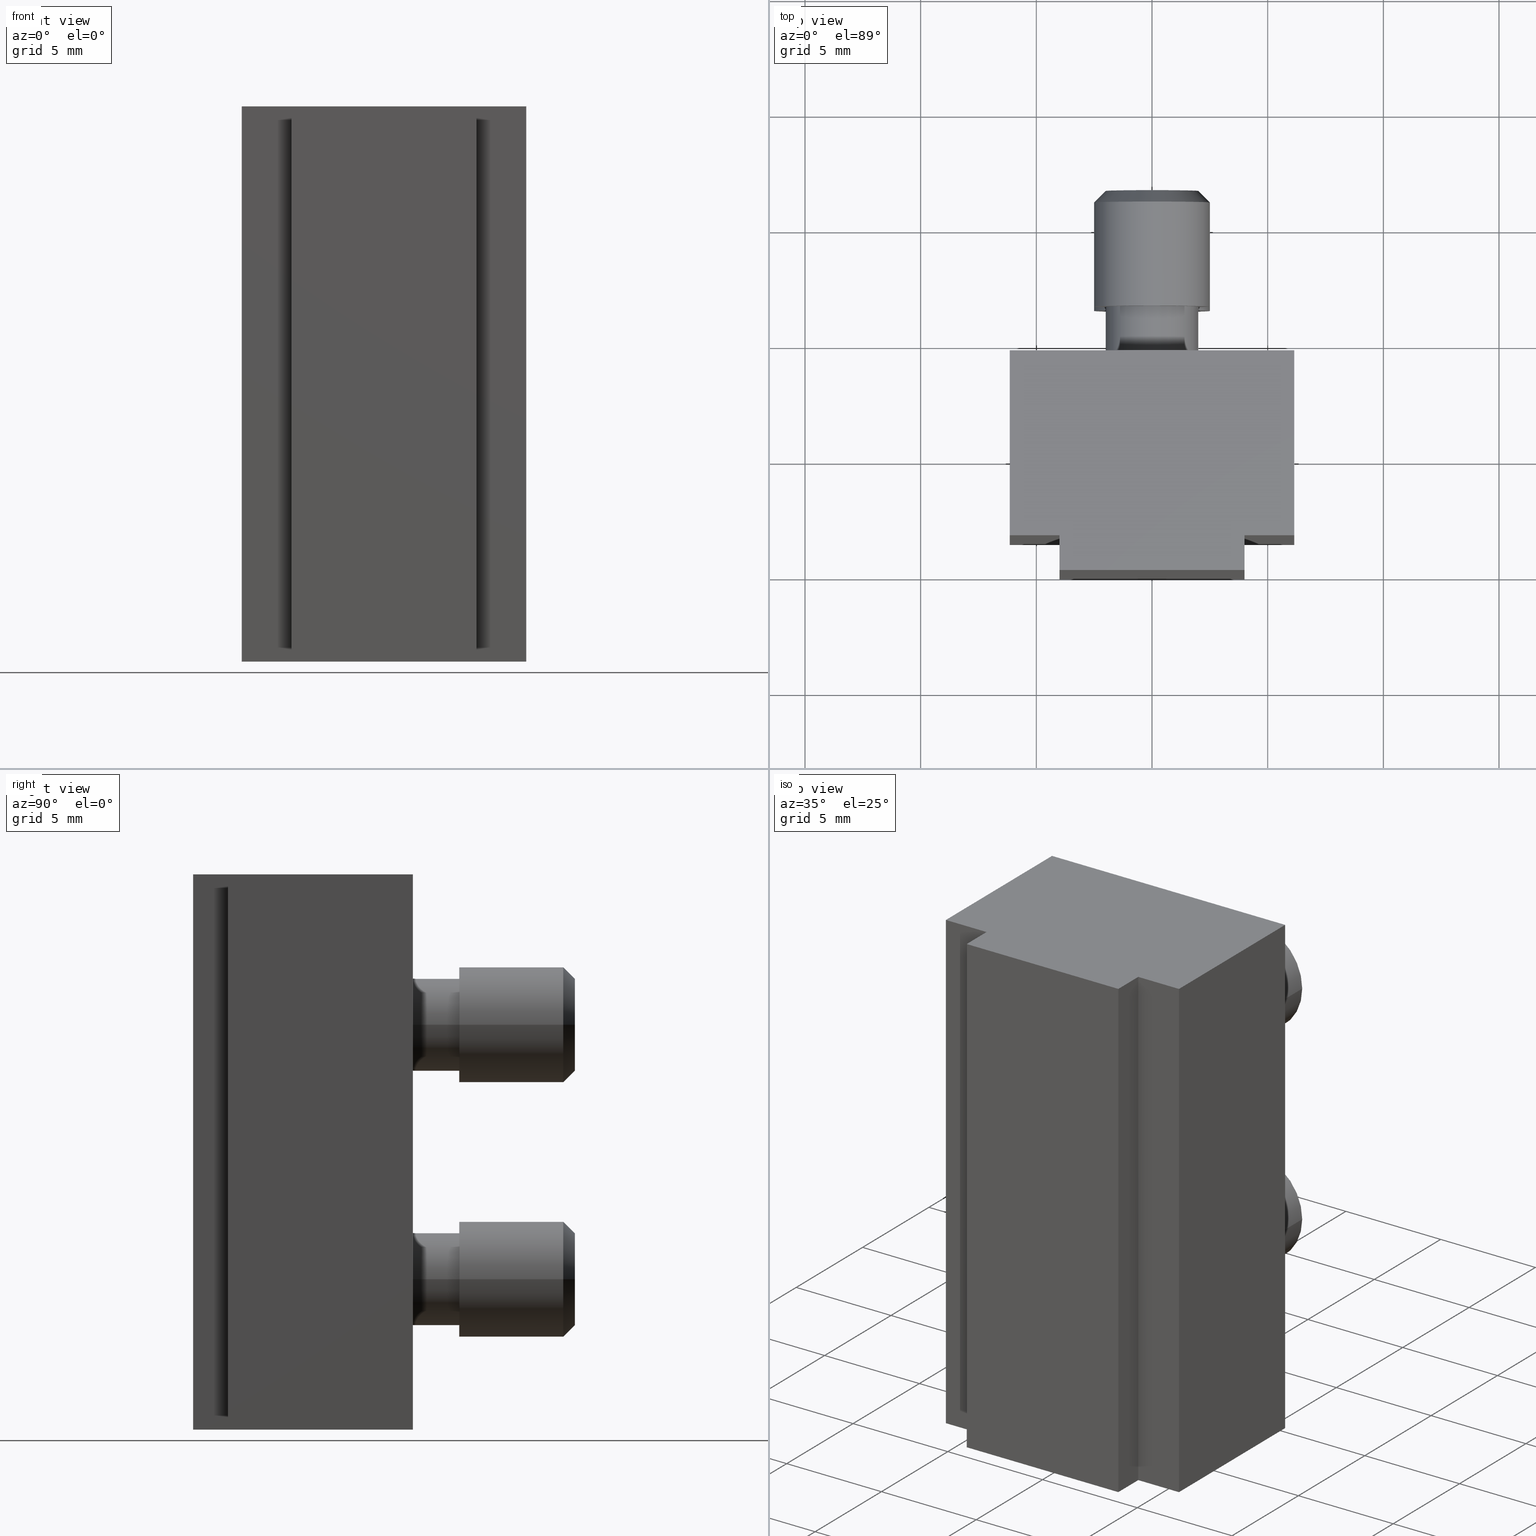
[diagram: canonical four-view strip — front | top / right | iso, engineering-drawing reading convention]
A machine part, canonical four-view strip (front | top / right | iso — engineering-drawing reading convention). The complete STEP part file that produces these views, byte-faithful:
ISO-10303-21;
HEADER;
/* Generated by software containing ST-Developer
 * from STEP Tools, Inc. (www.steptools.com) 
 */

FILE_DESCRIPTION(
/* description */ ('WKZ-0166'),
/* implementation_level */ '2;1');

FILE_NAME(
/* name */ 
'H:\\Eigene Dateien\\CAD Workspace Vault\\CAD\\E_3_Nocken\\E_3_01_Aufs
chwei\X\DFnocke\\12_Einlegeteil\\E_3_01_12_20_01_WKZ-0166.stp',
/* time_stamp */ '2023-06-21T15:21:37+02:00',
/* author */ ('dfischer'),
/* organization */ (''),
/* preprocessor_version */ 'ST-DEVELOPER v18.1',
/* originating_system */ 'Autodesk Inventor 2021',
/* authorisation */ '');

FILE_SCHEMA (('AUTOMOTIVE_DESIGN { 1 0 10303 214 3 1 1 }'));
ENDSEC;

DATA;
#10=MECHANICAL_DESIGN_GEOMETRIC_PRESENTATION_REPRESENTATION('',(#33,#34,
#35),#1498);
#11=ITEM_DEFINED_TRANSFORMATION($,$,#781,#861);
#12=ITEM_DEFINED_TRANSFORMATION($,$,#828,#862);
#13=ITEM_DEFINED_TRANSFORMATION($,$,#828,#863);
#14=(
REPRESENTATION_RELATIONSHIP($,$,#1513,#1512)
REPRESENTATION_RELATIONSHIP_WITH_TRANSFORMATION(#11)
SHAPE_REPRESENTATION_RELATIONSHIP()
);
#15=(
REPRESENTATION_RELATIONSHIP($,$,#1514,#1512)
REPRESENTATION_RELATIONSHIP_WITH_TRANSFORMATION(#12)
SHAPE_REPRESENTATION_RELATIONSHIP()
);
#16=(
REPRESENTATION_RELATIONSHIP($,$,#1514,#1512)
REPRESENTATION_RELATIONSHIP_WITH_TRANSFORMATION(#13)
SHAPE_REPRESENTATION_RELATIONSHIP()
);
#17=CONTEXT_DEPENDENT_SHAPE_REPRESENTATION(#14,#1509);
#18=CONTEXT_DEPENDENT_SHAPE_REPRESENTATION(#15,#1510);
#19=CONTEXT_DEPENDENT_SHAPE_REPRESENTATION(#16,#1511);
#20=NEXT_ASSEMBLY_USAGE_OCCURRENCE('E_3_01_12_20_01_WKZ-0166-Teil1:1',
'E_3_01_12_20_01_WKZ-0166-Teil1:1','E_3_01_12_20_01_WKZ-0166-Teil1:1',#1516,
#1517,'E_3_01_12_20_01_WKZ-0166-Teil1:1');
#21=NEXT_ASSEMBLY_USAGE_OCCURRENCE('E_3_01_12_20_01_WKZ-0166-Teil2:1',
'E_3_01_12_20_01_WKZ-0166-Teil2:1','E_3_01_12_20_01_WKZ-0166-Teil2:1',#1516,
#1518,'E_3_01_12_20_01_WKZ-0166-Teil2:1');
#22=NEXT_ASSEMBLY_USAGE_OCCURRENCE('E_3_01_12_20_01_WKZ-0166-Teil2:2',
'E_3_01_12_20_01_WKZ-0166-Teil2:2','E_3_01_12_20_01_WKZ-0166-Teil2:2',#1516,
#1518,'E_3_01_12_20_01_WKZ-0166-Teil2:2');
#23=CONICAL_SURFACE('',#829,0.875,0.785398163397448);
#24=CONICAL_SURFACE('',#834,0.875,0.785398163397448);
#25=CONICAL_SURFACE('',#844,2.75,0.785398163397448);
#26=CONICAL_SURFACE('',#853,2.25,0.785398163397448);
#27=SHAPE_REPRESENTATION_RELATIONSHIP('SRR','None',#1513,#29);
#28=SHAPE_REPRESENTATION_RELATIONSHIP('SRR','None',#1514,#30);
#29=ADVANCED_BREP_SHAPE_REPRESENTATION('',(#31),#1496);
#30=ADVANCED_BREP_SHAPE_REPRESENTATION('',(#32),#1497);
#31=MANIFOLD_SOLID_BREP('Volumenk\X\F6rper1',#710);
#32=MANIFOLD_SOLID_BREP('Volumenk\X\F6rper1',#711);
#33=STYLED_ITEM('',(#736),#685);
#34=STYLED_ITEM('',(#735),#31);
#35=STYLED_ITEM('',(#737),#32);
#36=FACE_BOUND('',#124,.T.);
#37=FACE_BOUND('',#126,.T.);
#38=FACE_BOUND('',#130,.T.);
#39=FACE_BOUND('',#132,.T.);
#40=FACE_BOUND('',#141,.T.);
#41=FACE_BOUND('',#142,.T.);
#42=FACE_BOUND('',#154,.T.);
#43=FACE_BOUND('',#157,.T.);
#44=FACE_BOUND('',#160,.T.);
#45=FACE_BOUND('',#165,.T.);
#46=PLANE('',#784);
#47=PLANE('',#787);
#48=PLANE('',#790);
#49=PLANE('',#793);
#50=PLANE('',#799);
#51=PLANE('',#805);
#52=PLANE('',#811);
#53=PLANE('',#817);
#54=PLANE('',#818);
#55=PLANE('',#819);
#56=PLANE('',#820);
#57=PLANE('',#821);
#58=PLANE('',#822);
#59=PLANE('',#823);
#60=PLANE('',#824);
#61=PLANE('',#825);
#62=PLANE('',#826);
#63=PLANE('',#827);
#64=PLANE('',#833);
#65=PLANE('',#838);
#66=PLANE('',#842);
#67=PLANE('',#849);
#68=PLANE('',#850);
#69=PLANE('',#857);
#70=PLANE('',#858);
#71=FACE_OUTER_BOUND('',#114,.T.);
#72=FACE_OUTER_BOUND('',#115,.T.);
#73=FACE_OUTER_BOUND('',#116,.T.);
#74=FACE_OUTER_BOUND('',#117,.T.);
#75=FACE_OUTER_BOUND('',#118,.T.);
#76=FACE_OUTER_BOUND('',#119,.T.);
#77=FACE_OUTER_BOUND('',#120,.T.);
#78=FACE_OUTER_BOUND('',#121,.T.);
#79=FACE_OUTER_BOUND('',#122,.T.);
#80=FACE_OUTER_BOUND('',#123,.T.);
#81=FACE_OUTER_BOUND('',#125,.T.);
#82=FACE_OUTER_BOUND('',#127,.T.);
#83=FACE_OUTER_BOUND('',#128,.T.);
#84=FACE_OUTER_BOUND('',#129,.T.);
#85=FACE_OUTER_BOUND('',#131,.T.);
#86=FACE_OUTER_BOUND('',#133,.T.);
#87=FACE_OUTER_BOUND('',#134,.T.);
#88=FACE_OUTER_BOUND('',#135,.T.);
#89=FACE_OUTER_BOUND('',#136,.T.);
#90=FACE_OUTER_BOUND('',#137,.T.);
#91=FACE_OUTER_BOUND('',#138,.T.);
#92=FACE_OUTER_BOUND('',#139,.T.);
#93=FACE_OUTER_BOUND('',#140,.T.);
#94=FACE_OUTER_BOUND('',#143,.T.);
#95=FACE_OUTER_BOUND('',#144,.T.);
#96=FACE_OUTER_BOUND('',#145,.T.);
#97=FACE_OUTER_BOUND('',#146,.T.);
#98=FACE_OUTER_BOUND('',#147,.T.);
#99=FACE_OUTER_BOUND('',#148,.T.);
#100=FACE_OUTER_BOUND('',#149,.T.);
#101=FACE_OUTER_BOUND('',#150,.T.);
#102=FACE_OUTER_BOUND('',#151,.T.);
#103=FACE_OUTER_BOUND('',#152,.T.);
#104=FACE_OUTER_BOUND('',#153,.T.);
#105=FACE_OUTER_BOUND('',#155,.T.);
#106=FACE_OUTER_BOUND('',#156,.T.);
#107=FACE_OUTER_BOUND('',#158,.T.);
#108=FACE_OUTER_BOUND('',#159,.T.);
#109=FACE_OUTER_BOUND('',#161,.T.);
#110=FACE_OUTER_BOUND('',#162,.T.);
#111=FACE_OUTER_BOUND('',#163,.T.);
#112=FACE_OUTER_BOUND('',#164,.T.);
#113=FACE_OUTER_BOUND('',#166,.T.);
#114=EDGE_LOOP('',(#465,#466,#467,#468,#469,#470));
#115=EDGE_LOOP('',(#471));
#116=EDGE_LOOP('',(#472,#473,#474,#475,#476));
#117=EDGE_LOOP('',(#477));
#118=EDGE_LOOP('',(#478,#479,#480,#481,#482,#483));
#119=EDGE_LOOP('',(#484));
#120=EDGE_LOOP('',(#485,#486,#487,#488,#489));
#121=EDGE_LOOP('',(#490));
#122=EDGE_LOOP('',(#491,#492,#493,#494,#495,#496));
#123=EDGE_LOOP('',(#497,#498));
#124=EDGE_LOOP('',(#499,#500));
#125=EDGE_LOOP('',(#501,#502,#503,#504,#505,#506,#507,#508,#509,#510,#511));
#126=EDGE_LOOP('',(#512,#513));
#127=EDGE_LOOP('',(#514,#515));
#128=EDGE_LOOP('',(#516,#517,#518,#519,#520,#521));
#129=EDGE_LOOP('',(#522,#523));
#130=EDGE_LOOP('',(#524,#525));
#131=EDGE_LOOP('',(#526,#527,#528,#529,#530,#531,#532,#533,#534,#535,#536));
#132=EDGE_LOOP('',(#537,#538));
#133=EDGE_LOOP('',(#539,#540));
#134=EDGE_LOOP('',(#541,#542,#543,#544,#545,#546,#547,#548));
#135=EDGE_LOOP('',(#549,#550,#551,#552));
#136=EDGE_LOOP('',(#553,#554,#555,#556));
#137=EDGE_LOOP('',(#557,#558,#559,#560));
#138=EDGE_LOOP('',(#561,#562,#563,#564));
#139=EDGE_LOOP('',(#565,#566,#567,#568));
#140=EDGE_LOOP('',(#569,#570,#571,#572));
#141=EDGE_LOOP('',(#573,#574));
#142=EDGE_LOOP('',(#575,#576));
#143=EDGE_LOOP('',(#577,#578,#579,#580));
#144=EDGE_LOOP('',(#581,#582,#583,#584));
#145=EDGE_LOOP('',(#585,#586,#587,#588,#589,#590,#591,#592));
#146=EDGE_LOOP('',(#593,#594,#595,#596));
#147=EDGE_LOOP('',(#597,#598,#599,#600,#601,#602));
#148=EDGE_LOOP('',(#603));
#149=EDGE_LOOP('',(#604,#605,#606,#607));
#150=EDGE_LOOP('',(#608,#609,#610,#611));
#151=EDGE_LOOP('',(#612));
#152=EDGE_LOOP('',(#613,#614,#615,#616));
#153=EDGE_LOOP('',(#617));
#154=EDGE_LOOP('',(#618));
#155=EDGE_LOOP('',(#619,#620,#621,#622));
#156=EDGE_LOOP('',(#623,#624,#625,#626,#627,#628,#629,#630,#631));
#157=EDGE_LOOP('',(#632));
#158=EDGE_LOOP('',(#633));
#159=EDGE_LOOP('',(#634,#635));
#160=EDGE_LOOP('',(#636));
#161=EDGE_LOOP('',(#637,#638,#639,#640));
#162=EDGE_LOOP('',(#641,#642,#643,#644));
#163=EDGE_LOOP('',(#645));
#164=EDGE_LOOP('',(#646));
#165=EDGE_LOOP('',(#647));
#166=EDGE_LOOP('',(#648,#649,#650,#651,#652));
#167=B_SPLINE_CURVE_WITH_KNOTS('',3,(#1085,#1086,#1087,#1088,#1089,#1090,
#1091,#1092,#1093,#1094,#1095,#1096,#1097,#1098,#1099,#1100,#1101,#1102),
 .UNSPECIFIED.,.F.,.F.,(4,2,2,2,2,2,2,2,4),(0.151940029365148,0.189916225925354,
0.227892422485559,0.265886240607928,0.303880058730296,0.341873876852665,
0.379867694975034,0.417843891535239,0.455820088095444),.UNSPECIFIED.);
#168=B_SPLINE_CURVE_WITH_KNOTS('',3,(#1104,#1105,#1106,#1107,#1108,#1109,
#1110,#1111,#1112,#1113),.UNSPECIFIED.,.F.,.F.,(4,2,2,2,4),(0.,0.0379938181223687,
0.0759876362447373,0.113963832804943,0.151940029365148),.UNSPECIFIED.);
#169=B_SPLINE_CURVE_WITH_KNOTS('',3,(#1114,#1115,#1116,#1117,#1118,#1119,
#1120,#1121,#1122,#1123),.UNSPECIFIED.,.F.,.F.,(4,2,2,2,4),(0.455820088095444,
0.49379628465565,0.531772481215855,0.569766299338224,0.607760117460593),
 .UNSPECIFIED.);
#170=B_SPLINE_CURVE_WITH_KNOTS('',3,(#1128,#1129,#1130,#1131,#1132,#1133,
#1134,#1135,#1136,#1137),.UNSPECIFIED.,.F.,.F.,(4,2,2,2,4),(0.,0.0379938181223687,
0.0759876362447373,0.113963832804943,0.151940029365148),.UNSPECIFIED.);
#171=B_SPLINE_CURVE_WITH_KNOTS('',3,(#1138,#1139,#1140,#1141,#1142,#1143,
#1144,#1145,#1146,#1147,#1148,#1149,#1150,#1151,#1152,#1153,#1154,#1155,
#1156,#1157,#1158,#1159,#1160,#1161,#1162,#1163),.UNSPECIFIED.,.F.,.F.,
(4,2,2,2,2,2,2,2,2,2,2,2,4),(0.151940029365148,0.189916225925354,0.227892422485559,
0.265886240607928,0.303880058730296,0.341873876852665,0.379867694975034,
0.417843891535239,0.455820088095444,0.49379628465565,0.531772481215855,
0.569766299338224,0.607760117460593),.UNSPECIFIED.);
#172=B_SPLINE_CURVE_WITH_KNOTS('',3,(#1174,#1175,#1176,#1177,#1178,#1179,
#1180,#1181,#1182,#1183),.UNSPECIFIED.,.F.,.F.,(4,2,2,2,4),(0.,0.0379938181223686,
0.0759876362447372,0.113963832804943,0.151940029365148),.UNSPECIFIED.);
#173=B_SPLINE_CURVE_WITH_KNOTS('',3,(#1185,#1186,#1187,#1188,#1189,#1190,
#1191,#1192,#1193,#1194),.UNSPECIFIED.,.F.,.F.,(4,2,2,2,4),(0.455820088095444,
0.49379628465565,0.531772481215855,0.569766299338224,0.607760117460592),
 .UNSPECIFIED.);
#174=B_SPLINE_CURVE_WITH_KNOTS('',3,(#1195,#1196,#1197,#1198,#1199,#1200,
#1201,#1202,#1203,#1204,#1205,#1206,#1207,#1208,#1209,#1210,#1211,#1212),
 .UNSPECIFIED.,.F.,.F.,(4,2,2,2,2,2,2,2,4),(0.151940029365148,0.189916225925353,
0.227892422485559,0.265886240607928,0.303880058730296,0.341873876852665,
0.379867694975033,0.417843891535239,0.455820088095444),.UNSPECIFIED.);
#175=B_SPLINE_CURVE_WITH_KNOTS('',3,(#1217,#1218,#1219,#1220,#1221,#1222,
#1223,#1224,#1225,#1226,#1227,#1228,#1229,#1230,#1231,#1232,#1233,#1234,
#1235,#1236,#1237,#1238,#1239,#1240,#1241,#1242),.UNSPECIFIED.,.F.,.F.,
(4,2,2,2,2,2,2,2,2,2,2,2,4),(0.,0.0379938181223687,0.0759876362447373,0.113963832804943,
0.151940029365148,0.189916225925354,0.227892422485559,0.265886240607928,
0.303880058730296,0.341873876852665,0.379867694975034,0.417843891535239,
0.455820088095444),.UNSPECIFIED.);
#176=B_SPLINE_CURVE_WITH_KNOTS('',3,(#1243,#1244,#1245,#1246,#1247,#1248,
#1249,#1250,#1251,#1252),.UNSPECIFIED.,.F.,.F.,(4,2,2,2,4),(0.455820088095444,
0.49379628465565,0.531772481215855,0.569766299338224,0.607760117460593),
 .UNSPECIFIED.);
#177=B_SPLINE_CURVE_WITH_KNOTS('',3,(#1363,#1364,#1365,#1366,#1367,#1368,
#1369,#1370,#1371,#1372),.UNSPECIFIED.,.F.,.F.,(4,2,2,2,4),(0.,0.0379938181223686,
0.0759876362447372,0.113963832804943,0.151940029365148),.UNSPECIFIED.);
#178=B_SPLINE_CURVE_WITH_KNOTS('',3,(#1375,#1376,#1377,#1378,#1379,#1380,
#1381,#1382,#1383,#1384),.UNSPECIFIED.,.F.,.F.,(4,2,2,2,4),(0.455820088095444,
0.49379628465565,0.531772481215855,0.569766299338224,0.607760117460593),
 .UNSPECIFIED.);
#179=B_SPLINE_CURVE_WITH_KNOTS('',3,(#1385,#1386,#1387,#1388,#1389,#1390,
#1391,#1392,#1393,#1394,#1395,#1396,#1397,#1398,#1399,#1400,#1401,#1402),
 .UNSPECIFIED.,.F.,.F.,(4,2,2,2,2,2,2,2,4),(0.151940029365148,0.189916225925354,
0.227892422485559,0.265886240607928,0.303880058730296,0.341873876852665,
0.379867694975034,0.417843891535239,0.455820088095444),.UNSPECIFIED.);
#180=B_SPLINE_CURVE_WITH_KNOTS('',3,(#1413,#1414,#1415,#1416,#1417,#1418,
#1419,#1420,#1421,#1422,#1423,#1424,#1425,#1426,#1427,#1428,#1429,#1430,
#1431,#1432,#1433,#1434,#1435,#1436,#1437,#1438,#1439,#1440,#1441,#1442,
#1443,#1444,#1445,#1446),.UNSPECIFIED.,.T.,.F.,(4,2,2,2,2,2,2,2,2,2,2,2,
2,2,2,2,4),(0.,0.0379938181223687,0.0759876362447374,0.113963832804943,
0.151940029365148,0.189916225925354,0.227892422485559,0.265886240607928,
0.303880058730296,0.341873876852665,0.379867694975034,0.417843891535239,
0.455820088095444,0.49379628465565,0.531772481215855,0.569766299338224,
0.607760117460593),.UNSPECIFIED.);
#181=LINE('',#1083,#226);
#182=LINE('',#1165,#227);
#183=LINE('',#1172,#228);
#184=LINE('',#1254,#229);
#185=LINE('',#1263,#230);
#186=LINE('',#1273,#231);
#187=LINE('',#1275,#232);
#188=LINE('',#1286,#233);
#189=LINE('',#1296,#234);
#190=LINE('',#1298,#235);
#191=LINE('',#1306,#236);
#192=LINE('',#1308,#237);
#193=LINE('',#1310,#238);
#194=LINE('',#1312,#239);
#195=LINE('',#1314,#240);
#196=LINE('',#1316,#241);
#197=LINE('',#1318,#242);
#198=LINE('',#1319,#243);
#199=LINE('',#1323,#244);
#200=LINE('',#1324,#245);
#201=LINE('',#1325,#246);
#202=LINE('',#1328,#247);
#203=LINE('',#1329,#248);
#204=LINE('',#1332,#249);
#205=LINE('',#1333,#250);
#206=LINE('',#1336,#251);
#207=LINE('',#1337,#252);
#208=LINE('',#1340,#253);
#209=LINE('',#1341,#254);
#210=LINE('',#1344,#255);
#211=LINE('',#1345,#256);
#212=LINE('',#1348,#257);
#213=LINE('',#1349,#258);
#214=LINE('',#1351,#259);
#215=LINE('',#1358,#260);
#216=LINE('',#1373,#261);
#217=LINE('',#1408,#262);
#218=LINE('',#1412,#263);
#219=LINE('',#1452,#264);
#220=LINE('',#1461,#265);
#221=LINE('',#1466,#266);
#222=LINE('',#1467,#267);
#223=LINE('',#1478,#268);
#224=LINE('',#1481,#269);
#225=LINE('',#1487,#270);
#226=VECTOR('',#872,1.);
#227=VECTOR('',#877,1.);
#228=VECTOR('',#886,1.);
#229=VECTOR('',#891,1.);
#230=VECTOR('',#902,5.);
#231=VECTOR('',#915,3.);
#232=VECTOR('',#916,3.);
#233=VECTOR('',#929,5.);
#234=VECTOR('',#942,3.);
#235=VECTOR('',#943,3.);
#236=VECTOR('',#952,10.);
#237=VECTOR('',#953,10.);
#238=VECTOR('',#954,10.);
#239=VECTOR('',#955,10.);
#240=VECTOR('',#956,10.);
#241=VECTOR('',#957,10.);
#242=VECTOR('',#958,10.);
#243=VECTOR('',#959,10.);
#244=VECTOR('',#962,10.);
#245=VECTOR('',#963,10.);
#246=VECTOR('',#964,10.);
#247=VECTOR('',#967,10.);
#248=VECTOR('',#968,10.);
#249=VECTOR('',#971,10.);
#250=VECTOR('',#972,10.);
#251=VECTOR('',#975,10.);
#252=VECTOR('',#976,10.);
#253=VECTOR('',#979,10.);
#254=VECTOR('',#980,10.);
#255=VECTOR('',#983,10.);
#256=VECTOR('',#984,10.);
#257=VECTOR('',#987,10.);
#258=VECTOR('',#988,10.);
#259=VECTOR('',#991,10.);
#260=VECTOR('',#1000,0.875);
#261=VECTOR('',#1005,1.);
#262=VECTOR('',#1012,0.875);
#263=VECTOR('',#1017,1.);
#264=VECTOR('',#1024,2.);
#265=VECTOR('',#1035,2.75);
#266=VECTOR('',#1042,3.);
#267=VECTOR('',#1043,3.);
#268=VECTOR('',#1056,2.25);
#269=VECTOR('',#1061,2.5);
#270=VECTOR('',#1070,5.);
#271=CIRCLE('',#783,1.);
#272=CIRCLE('',#786,1.);
#273=CIRCLE('',#789,1.);
#274=CIRCLE('',#792,1.);
#275=CIRCLE('',#795,5.);
#276=CIRCLE('',#796,5.);
#277=CIRCLE('',#797,5.);
#278=CIRCLE('',#798,5.);
#279=CIRCLE('',#800,3.);
#280=CIRCLE('',#801,3.);
#281=CIRCLE('',#803,3.);
#282=CIRCLE('',#804,3.);
#283=CIRCLE('',#807,5.);
#284=CIRCLE('',#808,5.);
#285=CIRCLE('',#809,5.);
#286=CIRCLE('',#810,5.);
#287=CIRCLE('',#812,3.);
#288=CIRCLE('',#813,3.);
#289=CIRCLE('',#815,3.);
#290=CIRCLE('',#816,3.);
#291=CIRCLE('',#830,1.);
#292=CIRCLE('',#831,0.75);
#293=CIRCLE('',#835,1.);
#294=CIRCLE('',#836,0.75);
#295=CIRCLE('',#840,2.);
#296=CIRCLE('',#841,2.);
#297=CIRCLE('',#843,2.5);
#298=CIRCLE('',#845,2.5);
#299=CIRCLE('',#846,3.);
#300=CIRCLE('',#848,3.);
#301=CIRCLE('',#851,5.);
#302=CIRCLE('',#852,5.);
#303=CIRCLE('',#854,2.);
#304=CIRCLE('',#855,2.5);
#305=CIRCLE('',#859,5.);
#306=VERTEX_POINT('',#1080);
#307=VERTEX_POINT('',#1082);
#308=VERTEX_POINT('',#1084);
#309=VERTEX_POINT('',#1103);
#310=VERTEX_POINT('',#1126);
#311=VERTEX_POINT('',#1127);
#312=VERTEX_POINT('',#1164);
#313=VERTEX_POINT('',#1169);
#314=VERTEX_POINT('',#1171);
#315=VERTEX_POINT('',#1173);
#316=VERTEX_POINT('',#1184);
#317=VERTEX_POINT('',#1215);
#318=VERTEX_POINT('',#1216);
#319=VERTEX_POINT('',#1253);
#320=VERTEX_POINT('',#1258);
#321=VERTEX_POINT('',#1259);
#322=VERTEX_POINT('',#1262);
#323=VERTEX_POINT('',#1264);
#324=VERTEX_POINT('',#1268);
#325=VERTEX_POINT('',#1269);
#326=VERTEX_POINT('',#1274);
#327=VERTEX_POINT('',#1276);
#328=VERTEX_POINT('',#1281);
#329=VERTEX_POINT('',#1282);
#330=VERTEX_POINT('',#1285);
#331=VERTEX_POINT('',#1287);
#332=VERTEX_POINT('',#1291);
#333=VERTEX_POINT('',#1292);
#334=VERTEX_POINT('',#1297);
#335=VERTEX_POINT('',#1299);
#336=VERTEX_POINT('',#1304);
#337=VERTEX_POINT('',#1305);
#338=VERTEX_POINT('',#1307);
#339=VERTEX_POINT('',#1309);
#340=VERTEX_POINT('',#1311);
#341=VERTEX_POINT('',#1313);
#342=VERTEX_POINT('',#1315);
#343=VERTEX_POINT('',#1317);
#344=VERTEX_POINT('',#1321);
#345=VERTEX_POINT('',#1322);
#346=VERTEX_POINT('',#1327);
#347=VERTEX_POINT('',#1331);
#348=VERTEX_POINT('',#1335);
#349=VERTEX_POINT('',#1339);
#350=VERTEX_POINT('',#1343);
#351=VERTEX_POINT('',#1347);
#352=VERTEX_POINT('',#1355);
#353=VERTEX_POINT('',#1357);
#354=VERTEX_POINT('',#1361);
#355=VERTEX_POINT('',#1362);
#356=VERTEX_POINT('',#1374);
#357=VERTEX_POINT('',#1405);
#358=VERTEX_POINT('',#1407);
#359=VERTEX_POINT('',#1411);
#360=VERTEX_POINT('',#1449);
#361=VERTEX_POINT('',#1451);
#362=VERTEX_POINT('',#1455);
#363=VERTEX_POINT('',#1458);
#364=VERTEX_POINT('',#1460);
#365=VERTEX_POINT('',#1464);
#366=VERTEX_POINT('',#1470);
#367=VERTEX_POINT('',#1471);
#368=VERTEX_POINT('',#1475);
#369=VERTEX_POINT('',#1477);
#370=VERTEX_POINT('',#1484);
#371=EDGE_CURVE('',#306,#306,#271,.T.);
#372=EDGE_CURVE('',#306,#307,#181,.T.);
#373=EDGE_CURVE('',#308,#307,#167,.T.);
#374=EDGE_CURVE('',#309,#308,#168,.T.);
#375=EDGE_CURVE('',#307,#309,#169,.T.);
#376=EDGE_CURVE('',#310,#311,#170,.T.);
#377=EDGE_CURVE('',#311,#310,#171,.T.);
#378=EDGE_CURVE('',#311,#312,#182,.T.);
#379=EDGE_CURVE('',#312,#312,#272,.T.);
#380=EDGE_CURVE('',#313,#313,#273,.T.);
#381=EDGE_CURVE('',#313,#314,#183,.T.);
#382=EDGE_CURVE('',#315,#314,#172,.T.);
#383=EDGE_CURVE('',#316,#315,#173,.T.);
#384=EDGE_CURVE('',#314,#316,#174,.T.);
#385=EDGE_CURVE('',#317,#318,#175,.T.);
#386=EDGE_CURVE('',#318,#317,#176,.T.);
#387=EDGE_CURVE('',#318,#319,#184,.T.);
#388=EDGE_CURVE('',#319,#319,#274,.T.);
#389=EDGE_CURVE('',#320,#321,#275,.T.);
#390=EDGE_CURVE('',#321,#320,#276,.T.);
#391=EDGE_CURVE('',#321,#322,#185,.T.);
#392=EDGE_CURVE('',#323,#322,#277,.T.);
#393=EDGE_CURVE('',#322,#323,#278,.T.);
#394=EDGE_CURVE('',#324,#325,#279,.T.);
#395=EDGE_CURVE('',#325,#324,#280,.T.);
#396=EDGE_CURVE('',#325,#307,#186,.T.);
#397=EDGE_CURVE('',#308,#326,#187,.T.);
#398=EDGE_CURVE('',#327,#326,#281,.T.);
#399=EDGE_CURVE('',#326,#327,#282,.T.);
#400=EDGE_CURVE('',#328,#329,#283,.T.);
#401=EDGE_CURVE('',#329,#328,#284,.T.);
#402=EDGE_CURVE('',#329,#330,#188,.T.);
#403=EDGE_CURVE('',#330,#331,#285,.T.);
#404=EDGE_CURVE('',#331,#330,#286,.T.);
#405=EDGE_CURVE('',#332,#333,#287,.T.);
#406=EDGE_CURVE('',#333,#332,#288,.T.);
#407=EDGE_CURVE('',#333,#314,#189,.T.);
#408=EDGE_CURVE('',#316,#334,#190,.T.);
#409=EDGE_CURVE('',#334,#335,#289,.T.);
#410=EDGE_CURVE('',#335,#334,#290,.T.);
#411=EDGE_CURVE('',#336,#337,#191,.T.);
#412=EDGE_CURVE('',#338,#336,#192,.T.);
#413=EDGE_CURVE('',#339,#338,#193,.T.);
#414=EDGE_CURVE('',#340,#339,#194,.T.);
#415=EDGE_CURVE('',#341,#340,#195,.T.);
#416=EDGE_CURVE('',#342,#341,#196,.T.);
#417=EDGE_CURVE('',#343,#342,#197,.T.);
#418=EDGE_CURVE('',#337,#343,#198,.T.);
#419=EDGE_CURVE('',#344,#345,#199,.T.);
#420=EDGE_CURVE('',#345,#339,#200,.T.);
#421=EDGE_CURVE('',#344,#338,#201,.T.);
#422=EDGE_CURVE('',#345,#346,#202,.T.);
#423=EDGE_CURVE('',#346,#340,#203,.T.);
#424=EDGE_CURVE('',#346,#347,#204,.T.);
#425=EDGE_CURVE('',#347,#341,#205,.T.);
#426=EDGE_CURVE('',#347,#348,#206,.T.);
#427=EDGE_CURVE('',#348,#342,#207,.T.);
#428=EDGE_CURVE('',#348,#349,#208,.T.);
#429=EDGE_CURVE('',#349,#343,#209,.T.);
#430=EDGE_CURVE('',#349,#350,#210,.T.);
#431=EDGE_CURVE('',#350,#337,#211,.T.);
#432=EDGE_CURVE('',#350,#351,#212,.T.);
#433=EDGE_CURVE('',#336,#351,#213,.T.);
#434=EDGE_CURVE('',#351,#344,#214,.T.);
#435=EDGE_CURVE('',#352,#352,#291,.T.);
#436=EDGE_CURVE('',#352,#353,#215,.T.);
#437=EDGE_CURVE('',#353,#353,#292,.T.);
#438=EDGE_CURVE('',#354,#355,#177,.T.);
#439=EDGE_CURVE('',#354,#352,#216,.T.);
#440=EDGE_CURVE('',#356,#354,#178,.T.);
#441=EDGE_CURVE('',#355,#356,#179,.T.);
#442=EDGE_CURVE('',#357,#357,#293,.T.);
#443=EDGE_CURVE('',#357,#358,#217,.T.);
#444=EDGE_CURVE('',#358,#358,#294,.T.);
#445=EDGE_CURVE('',#357,#359,#218,.T.);
#446=EDGE_CURVE('',#359,#359,#180,.T.);
#447=EDGE_CURVE('',#360,#360,#295,.T.);
#448=EDGE_CURVE('',#360,#361,#219,.T.);
#449=EDGE_CURVE('',#361,#361,#296,.T.);
#450=EDGE_CURVE('',#362,#362,#297,.T.);
#451=EDGE_CURVE('',#363,#363,#298,.T.);
#452=EDGE_CURVE('',#363,#364,#220,.T.);
#453=EDGE_CURVE('',#364,#364,#299,.T.);
#454=EDGE_CURVE('',#365,#365,#300,.T.);
#455=EDGE_CURVE('',#365,#355,#221,.T.);
#456=EDGE_CURVE('',#356,#364,#222,.T.);
#457=EDGE_CURVE('',#366,#367,#301,.T.);
#458=EDGE_CURVE('',#367,#366,#302,.T.);
#459=EDGE_CURVE('',#368,#368,#303,.T.);
#460=EDGE_CURVE('',#368,#369,#223,.T.);
#461=EDGE_CURVE('',#369,#369,#304,.T.);
#462=EDGE_CURVE('',#362,#369,#224,.T.);
#463=EDGE_CURVE('',#370,#370,#305,.T.);
#464=EDGE_CURVE('',#370,#367,#225,.T.);
#465=ORIENTED_EDGE('',*,*,#371,.F.);
#466=ORIENTED_EDGE('',*,*,#372,.T.);
#467=ORIENTED_EDGE('',*,*,#373,.F.);
#468=ORIENTED_EDGE('',*,*,#374,.F.);
#469=ORIENTED_EDGE('',*,*,#375,.F.);
#470=ORIENTED_EDGE('',*,*,#372,.F.);
#471=ORIENTED_EDGE('',*,*,#371,.T.);
#472=ORIENTED_EDGE('',*,*,#376,.F.);
#473=ORIENTED_EDGE('',*,*,#377,.F.);
#474=ORIENTED_EDGE('',*,*,#378,.T.);
#475=ORIENTED_EDGE('',*,*,#379,.F.);
#476=ORIENTED_EDGE('',*,*,#378,.F.);
#477=ORIENTED_EDGE('',*,*,#379,.T.);
#478=ORIENTED_EDGE('',*,*,#380,.F.);
#479=ORIENTED_EDGE('',*,*,#381,.T.);
#480=ORIENTED_EDGE('',*,*,#382,.F.);
#481=ORIENTED_EDGE('',*,*,#383,.F.);
#482=ORIENTED_EDGE('',*,*,#384,.F.);
#483=ORIENTED_EDGE('',*,*,#381,.F.);
#484=ORIENTED_EDGE('',*,*,#380,.T.);
#485=ORIENTED_EDGE('',*,*,#385,.F.);
#486=ORIENTED_EDGE('',*,*,#386,.F.);
#487=ORIENTED_EDGE('',*,*,#387,.T.);
#488=ORIENTED_EDGE('',*,*,#388,.F.);
#489=ORIENTED_EDGE('',*,*,#387,.F.);
#490=ORIENTED_EDGE('',*,*,#388,.T.);
#491=ORIENTED_EDGE('',*,*,#389,.F.);
#492=ORIENTED_EDGE('',*,*,#390,.F.);
#493=ORIENTED_EDGE('',*,*,#391,.T.);
#494=ORIENTED_EDGE('',*,*,#392,.F.);
#495=ORIENTED_EDGE('',*,*,#393,.F.);
#496=ORIENTED_EDGE('',*,*,#391,.F.);
#497=ORIENTED_EDGE('',*,*,#392,.T.);
#498=ORIENTED_EDGE('',*,*,#393,.T.);
#499=ORIENTED_EDGE('',*,*,#394,.F.);
#500=ORIENTED_EDGE('',*,*,#395,.F.);
#501=ORIENTED_EDGE('',*,*,#394,.T.);
#502=ORIENTED_EDGE('',*,*,#396,.T.);
#503=ORIENTED_EDGE('',*,*,#375,.T.);
#504=ORIENTED_EDGE('',*,*,#374,.T.);
#505=ORIENTED_EDGE('',*,*,#397,.T.);
#506=ORIENTED_EDGE('',*,*,#398,.F.);
#507=ORIENTED_EDGE('',*,*,#399,.F.);
#508=ORIENTED_EDGE('',*,*,#397,.F.);
#509=ORIENTED_EDGE('',*,*,#373,.T.);
#510=ORIENTED_EDGE('',*,*,#396,.F.);
#511=ORIENTED_EDGE('',*,*,#395,.T.);
#512=ORIENTED_EDGE('',*,*,#376,.T.);
#513=ORIENTED_EDGE('',*,*,#377,.T.);
#514=ORIENTED_EDGE('',*,*,#398,.T.);
#515=ORIENTED_EDGE('',*,*,#399,.T.);
#516=ORIENTED_EDGE('',*,*,#400,.F.);
#517=ORIENTED_EDGE('',*,*,#401,.F.);
#518=ORIENTED_EDGE('',*,*,#402,.T.);
#519=ORIENTED_EDGE('',*,*,#403,.T.);
#520=ORIENTED_EDGE('',*,*,#404,.T.);
#521=ORIENTED_EDGE('',*,*,#402,.F.);
#522=ORIENTED_EDGE('',*,*,#404,.F.);
#523=ORIENTED_EDGE('',*,*,#403,.F.);
#524=ORIENTED_EDGE('',*,*,#405,.T.);
#525=ORIENTED_EDGE('',*,*,#406,.T.);
#526=ORIENTED_EDGE('',*,*,#405,.F.);
#527=ORIENTED_EDGE('',*,*,#406,.F.);
#528=ORIENTED_EDGE('',*,*,#407,.T.);
#529=ORIENTED_EDGE('',*,*,#384,.T.);
#530=ORIENTED_EDGE('',*,*,#408,.T.);
#531=ORIENTED_EDGE('',*,*,#409,.T.);
#532=ORIENTED_EDGE('',*,*,#410,.T.);
#533=ORIENTED_EDGE('',*,*,#408,.F.);
#534=ORIENTED_EDGE('',*,*,#383,.T.);
#535=ORIENTED_EDGE('',*,*,#382,.T.);
#536=ORIENTED_EDGE('',*,*,#407,.F.);
#537=ORIENTED_EDGE('',*,*,#385,.T.);
#538=ORIENTED_EDGE('',*,*,#386,.T.);
#539=ORIENTED_EDGE('',*,*,#410,.F.);
#540=ORIENTED_EDGE('',*,*,#409,.F.);
#541=ORIENTED_EDGE('',*,*,#411,.F.);
#542=ORIENTED_EDGE('',*,*,#412,.F.);
#543=ORIENTED_EDGE('',*,*,#413,.F.);
#544=ORIENTED_EDGE('',*,*,#414,.F.);
#545=ORIENTED_EDGE('',*,*,#415,.F.);
#546=ORIENTED_EDGE('',*,*,#416,.F.);
#547=ORIENTED_EDGE('',*,*,#417,.F.);
#548=ORIENTED_EDGE('',*,*,#418,.F.);
#549=ORIENTED_EDGE('',*,*,#419,.T.);
#550=ORIENTED_EDGE('',*,*,#420,.T.);
#551=ORIENTED_EDGE('',*,*,#413,.T.);
#552=ORIENTED_EDGE('',*,*,#421,.F.);
#553=ORIENTED_EDGE('',*,*,#422,.T.);
#554=ORIENTED_EDGE('',*,*,#423,.T.);
#555=ORIENTED_EDGE('',*,*,#414,.T.);
#556=ORIENTED_EDGE('',*,*,#420,.F.);
#557=ORIENTED_EDGE('',*,*,#424,.T.);
#558=ORIENTED_EDGE('',*,*,#425,.T.);
#559=ORIENTED_EDGE('',*,*,#415,.T.);
#560=ORIENTED_EDGE('',*,*,#423,.F.);
#561=ORIENTED_EDGE('',*,*,#426,.T.);
#562=ORIENTED_EDGE('',*,*,#427,.T.);
#563=ORIENTED_EDGE('',*,*,#416,.T.);
#564=ORIENTED_EDGE('',*,*,#425,.F.);
#565=ORIENTED_EDGE('',*,*,#428,.T.);
#566=ORIENTED_EDGE('',*,*,#429,.T.);
#567=ORIENTED_EDGE('',*,*,#417,.T.);
#568=ORIENTED_EDGE('',*,*,#427,.F.);
#569=ORIENTED_EDGE('',*,*,#430,.T.);
#570=ORIENTED_EDGE('',*,*,#431,.T.);
#571=ORIENTED_EDGE('',*,*,#418,.T.);
#572=ORIENTED_EDGE('',*,*,#429,.F.);
#573=ORIENTED_EDGE('',*,*,#389,.T.);
#574=ORIENTED_EDGE('',*,*,#390,.T.);
#575=ORIENTED_EDGE('',*,*,#400,.T.);
#576=ORIENTED_EDGE('',*,*,#401,.T.);
#577=ORIENTED_EDGE('',*,*,#432,.T.);
#578=ORIENTED_EDGE('',*,*,#433,.F.);
#579=ORIENTED_EDGE('',*,*,#411,.T.);
#580=ORIENTED_EDGE('',*,*,#431,.F.);
#581=ORIENTED_EDGE('',*,*,#434,.T.);
#582=ORIENTED_EDGE('',*,*,#421,.T.);
#583=ORIENTED_EDGE('',*,*,#412,.T.);
#584=ORIENTED_EDGE('',*,*,#433,.T.);
#585=ORIENTED_EDGE('',*,*,#419,.F.);
#586=ORIENTED_EDGE('',*,*,#434,.F.);
#587=ORIENTED_EDGE('',*,*,#432,.F.);
#588=ORIENTED_EDGE('',*,*,#430,.F.);
#589=ORIENTED_EDGE('',*,*,#428,.F.);
#590=ORIENTED_EDGE('',*,*,#426,.F.);
#591=ORIENTED_EDGE('',*,*,#424,.F.);
#592=ORIENTED_EDGE('',*,*,#422,.F.);
#593=ORIENTED_EDGE('',*,*,#435,.T.);
#594=ORIENTED_EDGE('',*,*,#436,.T.);
#595=ORIENTED_EDGE('',*,*,#437,.T.);
#596=ORIENTED_EDGE('',*,*,#436,.F.);
#597=ORIENTED_EDGE('',*,*,#438,.F.);
#598=ORIENTED_EDGE('',*,*,#439,.T.);
#599=ORIENTED_EDGE('',*,*,#435,.F.);
#600=ORIENTED_EDGE('',*,*,#439,.F.);
#601=ORIENTED_EDGE('',*,*,#440,.F.);
#602=ORIENTED_EDGE('',*,*,#441,.F.);
#603=ORIENTED_EDGE('',*,*,#437,.F.);
#604=ORIENTED_EDGE('',*,*,#442,.T.);
#605=ORIENTED_EDGE('',*,*,#443,.T.);
#606=ORIENTED_EDGE('',*,*,#444,.T.);
#607=ORIENTED_EDGE('',*,*,#443,.F.);
#608=ORIENTED_EDGE('',*,*,#442,.F.);
#609=ORIENTED_EDGE('',*,*,#445,.T.);
#610=ORIENTED_EDGE('',*,*,#446,.F.);
#611=ORIENTED_EDGE('',*,*,#445,.F.);
#612=ORIENTED_EDGE('',*,*,#444,.F.);
#613=ORIENTED_EDGE('',*,*,#447,.T.);
#614=ORIENTED_EDGE('',*,*,#448,.T.);
#615=ORIENTED_EDGE('',*,*,#449,.T.);
#616=ORIENTED_EDGE('',*,*,#448,.F.);
#617=ORIENTED_EDGE('',*,*,#450,.F.);
#618=ORIENTED_EDGE('',*,*,#447,.F.);
#619=ORIENTED_EDGE('',*,*,#451,.T.);
#620=ORIENTED_EDGE('',*,*,#452,.T.);
#621=ORIENTED_EDGE('',*,*,#453,.T.);
#622=ORIENTED_EDGE('',*,*,#452,.F.);
#623=ORIENTED_EDGE('',*,*,#454,.T.);
#624=ORIENTED_EDGE('',*,*,#455,.T.);
#625=ORIENTED_EDGE('',*,*,#441,.T.);
#626=ORIENTED_EDGE('',*,*,#456,.T.);
#627=ORIENTED_EDGE('',*,*,#453,.F.);
#628=ORIENTED_EDGE('',*,*,#456,.F.);
#629=ORIENTED_EDGE('',*,*,#440,.T.);
#630=ORIENTED_EDGE('',*,*,#438,.T.);
#631=ORIENTED_EDGE('',*,*,#455,.F.);
#632=ORIENTED_EDGE('',*,*,#446,.T.);
#633=ORIENTED_EDGE('',*,*,#451,.F.);
#634=ORIENTED_EDGE('',*,*,#457,.F.);
#635=ORIENTED_EDGE('',*,*,#458,.F.);
#636=ORIENTED_EDGE('',*,*,#454,.F.);
#637=ORIENTED_EDGE('',*,*,#459,.T.);
#638=ORIENTED_EDGE('',*,*,#460,.T.);
#639=ORIENTED_EDGE('',*,*,#461,.T.);
#640=ORIENTED_EDGE('',*,*,#460,.F.);
#641=ORIENTED_EDGE('',*,*,#450,.T.);
#642=ORIENTED_EDGE('',*,*,#462,.T.);
#643=ORIENTED_EDGE('',*,*,#461,.F.);
#644=ORIENTED_EDGE('',*,*,#462,.F.);
#645=ORIENTED_EDGE('',*,*,#459,.F.);
#646=ORIENTED_EDGE('',*,*,#463,.F.);
#647=ORIENTED_EDGE('',*,*,#449,.F.);
#648=ORIENTED_EDGE('',*,*,#463,.T.);
#649=ORIENTED_EDGE('',*,*,#464,.T.);
#650=ORIENTED_EDGE('',*,*,#458,.T.);
#651=ORIENTED_EDGE('',*,*,#457,.T.);
#652=ORIENTED_EDGE('',*,*,#464,.F.);
#653=CYLINDRICAL_SURFACE('',#782,1.);
#654=CYLINDRICAL_SURFACE('',#785,1.);
#655=CYLINDRICAL_SURFACE('',#788,1.);
#656=CYLINDRICAL_SURFACE('',#791,1.);
#657=CYLINDRICAL_SURFACE('',#794,5.);
#658=CYLINDRICAL_SURFACE('',#802,3.);
#659=CYLINDRICAL_SURFACE('',#806,5.);
#660=CYLINDRICAL_SURFACE('',#814,3.);
#661=CYLINDRICAL_SURFACE('',#832,1.);
#662=CYLINDRICAL_SURFACE('',#837,1.);
#663=CYLINDRICAL_SURFACE('',#839,2.);
#664=CYLINDRICAL_SURFACE('',#847,3.);
#665=CYLINDRICAL_SURFACE('',#856,2.5);
#666=CYLINDRICAL_SURFACE('',#860,5.);
#667=ADVANCED_FACE('',(#71),#653,.F.);
#668=ADVANCED_FACE('',(#72),#46,.T.);
#669=ADVANCED_FACE('',(#73),#654,.F.);
#670=ADVANCED_FACE('',(#74),#47,.F.);
#671=ADVANCED_FACE('',(#75),#655,.F.);
#672=ADVANCED_FACE('',(#76),#48,.T.);
#673=ADVANCED_FACE('',(#77),#656,.F.);
#674=ADVANCED_FACE('',(#78),#49,.F.);
#675=ADVANCED_FACE('',(#79),#657,.F.);
#676=ADVANCED_FACE('',(#80,#36),#50,.T.);
#677=ADVANCED_FACE('',(#81,#37),#658,.F.);
#678=ADVANCED_FACE('',(#82),#51,.T.);
#679=ADVANCED_FACE('',(#83),#659,.F.);
#680=ADVANCED_FACE('',(#84,#38),#52,.F.);
#681=ADVANCED_FACE('',(#85,#39),#660,.F.);
#682=ADVANCED_FACE('',(#86),#53,.F.);
#683=ADVANCED_FACE('',(#87),#54,.F.);
#684=ADVANCED_FACE('',(#88),#55,.T.);
#685=ADVANCED_FACE('',(#89),#56,.T.);
#686=ADVANCED_FACE('',(#90),#57,.T.);
#687=ADVANCED_FACE('',(#91),#58,.T.);
#688=ADVANCED_FACE('',(#92),#59,.T.);
#689=ADVANCED_FACE('',(#93,#40,#41),#60,.T.);
#690=ADVANCED_FACE('',(#94),#61,.T.);
#691=ADVANCED_FACE('',(#95),#62,.T.);
#692=ADVANCED_FACE('',(#96),#63,.T.);
#693=ADVANCED_FACE('',(#97),#23,.T.);
#694=ADVANCED_FACE('',(#98),#661,.T.);
#695=ADVANCED_FACE('',(#99),#64,.T.);
#696=ADVANCED_FACE('',(#100),#24,.T.);
#697=ADVANCED_FACE('',(#101),#662,.T.);
#698=ADVANCED_FACE('',(#102),#65,.F.);
#699=ADVANCED_FACE('',(#103),#663,.T.);
#700=ADVANCED_FACE('',(#104,#42),#66,.T.);
#701=ADVANCED_FACE('',(#105),#25,.T.);
#702=ADVANCED_FACE('',(#106,#43),#664,.T.);
#703=ADVANCED_FACE('',(#107),#67,.T.);
#704=ADVANCED_FACE('',(#108,#44),#68,.F.);
#705=ADVANCED_FACE('',(#109),#26,.T.);
#706=ADVANCED_FACE('',(#110),#665,.T.);
#707=ADVANCED_FACE('',(#111),#69,.F.);
#708=ADVANCED_FACE('',(#112,#45),#70,.F.);
#709=ADVANCED_FACE('',(#113),#666,.T.);
#710=CLOSED_SHELL('',(#667,#668,#669,#670,#671,#672,#673,#674,#675,#676,
#677,#678,#679,#680,#681,#682,#683,#684,#685,#686,#687,#688,#689,#690,#691,
#692));
#711=CLOSED_SHELL('',(#693,#694,#695,#696,#697,#698,#699,#700,#701,#702,
#703,#704,#705,#706,#707,#708,#709));
#712=DERIVED_UNIT_ELEMENT(#716,1.);
#713=DERIVED_UNIT_ELEMENT(#1500,3.);
#714=DERIVED_UNIT_ELEMENT(#716,1.);
#715=DERIVED_UNIT_ELEMENT(#1500,3.);
#716=(
MASS_UNIT()
NAMED_UNIT(*)
SI_UNIT($,.GRAM.)
);
#717=DERIVED_UNIT((#712,#713));
#718=DERIVED_UNIT((#714,#715));
#719=MEASURE_REPRESENTATION_ITEM('density measure',
POSITIVE_RATIO_MEASURE(8.03),#717);
#720=MEASURE_REPRESENTATION_ITEM('density measure',
POSITIVE_RATIO_MEASURE(8.03),#718);
#721=PROPERTY_DEFINITION_REPRESENTATION(#731,#725);
#722=PROPERTY_DEFINITION_REPRESENTATION(#732,#726);
#723=PROPERTY_DEFINITION_REPRESENTATION(#733,#727);
#724=PROPERTY_DEFINITION_REPRESENTATION(#734,#728);
#725=REPRESENTATION('material name',(#729),#1496);
#726=REPRESENTATION('density',(#719),#1496);
#727=REPRESENTATION('material name',(#730),#1497);
#728=REPRESENTATION('density',(#720),#1497);
#729=DESCRIPTIVE_REPRESENTATION_ITEM('1.4301','1.4301');
#730=DESCRIPTIVE_REPRESENTATION_ITEM('1.4301','1.4301');
#731=PROPERTY_DEFINITION('material property','material name',#1517);
#732=PROPERTY_DEFINITION('material property','density of part',#1517);
#733=PROPERTY_DEFINITION('material property','material name',#1518);
#734=PROPERTY_DEFINITION('material property','density of part',#1518);
#735=PRESENTATION_STYLE_ASSIGNMENT((#738));
#736=PRESENTATION_STYLE_ASSIGNMENT((#739));
#737=PRESENTATION_STYLE_ASSIGNMENT((#740));
#738=SURFACE_STYLE_USAGE(.BOTH.,#747);
#739=SURFACE_STYLE_USAGE(.BOTH.,#748);
#740=SURFACE_STYLE_USAGE(.BOTH.,#749);
#741=SURFACE_STYLE_RENDERING_WITH_PROPERTIES($,#759,(#744));
#742=SURFACE_STYLE_RENDERING_WITH_PROPERTIES($,#760,(#745));
#743=SURFACE_STYLE_RENDERING_WITH_PROPERTIES($,#761,(#746));
#744=SURFACE_STYLE_TRANSPARENT(0.);
#745=SURFACE_STYLE_TRANSPARENT(0.);
#746=SURFACE_STYLE_TRANSPARENT(0.);
#747=SURFACE_SIDE_STYLE('',(#750,#741));
#748=SURFACE_SIDE_STYLE('',(#751,#742));
#749=SURFACE_SIDE_STYLE('',(#752,#743));
#750=SURFACE_STYLE_FILL_AREA(#753);
#751=SURFACE_STYLE_FILL_AREA(#754);
#752=SURFACE_STYLE_FILL_AREA(#755);
#753=FILL_AREA_STYLE('',(#756));
#754=FILL_AREA_STYLE('',(#757));
#755=FILL_AREA_STYLE('',(#758));
#756=FILL_AREA_STYLE_COLOUR('',#759);
#757=FILL_AREA_STYLE_COLOUR('',#760);
#758=FILL_AREA_STYLE_COLOUR('',#761);
#759=COLOUR_RGB('',0.92156862745098,0.92156862745098,0.92156862745098);
#760=COLOUR_RGB('',0.0392156862745098,0.0392156862745098,0.0392156862745098);
#761=COLOUR_RGB('',0.796078431372549,0.603921568627451,0.231372549019608);
#762=DATE_TIME_ROLE('creation_date');
#763=DATE_TIME_ROLE('creation_date');
#764=DATE_TIME_ROLE('creation_date');
#765=APPLIED_DATE_AND_TIME_ASSIGNMENT(#768,#762,(#1516));
#766=APPLIED_DATE_AND_TIME_ASSIGNMENT(#769,#763,(#1517));
#767=APPLIED_DATE_AND_TIME_ASSIGNMENT(#770,#764,(#1518));
#768=DATE_AND_TIME(#771,#774);
#769=DATE_AND_TIME(#772,#775);
#770=DATE_AND_TIME(#773,#776);
#771=CALENDAR_DATE(2011,27,10);
#772=CALENDAR_DATE(2011,26,10);
#773=CALENDAR_DATE(2011,27,10);
#774=LOCAL_TIME(0,0,0.,#777);
#775=LOCAL_TIME(0,0,0.,#778);
#776=LOCAL_TIME(0,0,0.,#779);
#777=COORDINATED_UNIVERSAL_TIME_OFFSET(0,0,.BEHIND.);
#778=COORDINATED_UNIVERSAL_TIME_OFFSET(0,0,.BEHIND.);
#779=COORDINATED_UNIVERSAL_TIME_OFFSET(0,0,.BEHIND.);
#780=AXIS2_PLACEMENT_3D('placement',#1077,#864,#865);
#781=AXIS2_PLACEMENT_3D('placement',#1078,#866,#867);
#782=AXIS2_PLACEMENT_3D('',#1079,#868,#869);
#783=AXIS2_PLACEMENT_3D('',#1081,#870,#871);
#784=AXIS2_PLACEMENT_3D('',#1124,#873,#874);
#785=AXIS2_PLACEMENT_3D('',#1125,#875,#876);
#786=AXIS2_PLACEMENT_3D('',#1166,#878,#879);
#787=AXIS2_PLACEMENT_3D('',#1167,#880,#881);
#788=AXIS2_PLACEMENT_3D('',#1168,#882,#883);
#789=AXIS2_PLACEMENT_3D('',#1170,#884,#885);
#790=AXIS2_PLACEMENT_3D('',#1213,#887,#888);
#791=AXIS2_PLACEMENT_3D('',#1214,#889,#890);
#792=AXIS2_PLACEMENT_3D('',#1255,#892,#893);
#793=AXIS2_PLACEMENT_3D('',#1256,#894,#895);
#794=AXIS2_PLACEMENT_3D('',#1257,#896,#897);
#795=AXIS2_PLACEMENT_3D('',#1260,#898,#899);
#796=AXIS2_PLACEMENT_3D('',#1261,#900,#901);
#797=AXIS2_PLACEMENT_3D('',#1265,#903,#904);
#798=AXIS2_PLACEMENT_3D('',#1266,#905,#906);
#799=AXIS2_PLACEMENT_3D('',#1267,#907,#908);
#800=AXIS2_PLACEMENT_3D('',#1270,#909,#910);
#801=AXIS2_PLACEMENT_3D('',#1271,#911,#912);
#802=AXIS2_PLACEMENT_3D('',#1272,#913,#914);
#803=AXIS2_PLACEMENT_3D('',#1277,#917,#918);
#804=AXIS2_PLACEMENT_3D('',#1278,#919,#920);
#805=AXIS2_PLACEMENT_3D('',#1279,#921,#922);
#806=AXIS2_PLACEMENT_3D('',#1280,#923,#924);
#807=AXIS2_PLACEMENT_3D('',#1283,#925,#926);
#808=AXIS2_PLACEMENT_3D('',#1284,#927,#928);
#809=AXIS2_PLACEMENT_3D('',#1288,#930,#931);
#810=AXIS2_PLACEMENT_3D('',#1289,#932,#933);
#811=AXIS2_PLACEMENT_3D('',#1290,#934,#935);
#812=AXIS2_PLACEMENT_3D('',#1293,#936,#937);
#813=AXIS2_PLACEMENT_3D('',#1294,#938,#939);
#814=AXIS2_PLACEMENT_3D('',#1295,#940,#941);
#815=AXIS2_PLACEMENT_3D('',#1300,#944,#945);
#816=AXIS2_PLACEMENT_3D('',#1301,#946,#947);
#817=AXIS2_PLACEMENT_3D('',#1302,#948,#949);
#818=AXIS2_PLACEMENT_3D('',#1303,#950,#951);
#819=AXIS2_PLACEMENT_3D('',#1320,#960,#961);
#820=AXIS2_PLACEMENT_3D('',#1326,#965,#966);
#821=AXIS2_PLACEMENT_3D('',#1330,#969,#970);
#822=AXIS2_PLACEMENT_3D('',#1334,#973,#974);
#823=AXIS2_PLACEMENT_3D('',#1338,#977,#978);
#824=AXIS2_PLACEMENT_3D('',#1342,#981,#982);
#825=AXIS2_PLACEMENT_3D('',#1346,#985,#986);
#826=AXIS2_PLACEMENT_3D('',#1350,#989,#990);
#827=AXIS2_PLACEMENT_3D('',#1352,#992,#993);
#828=AXIS2_PLACEMENT_3D('placement',#1353,#994,#995);
#829=AXIS2_PLACEMENT_3D('',#1354,#996,#997);
#830=AXIS2_PLACEMENT_3D('',#1356,#998,#999);
#831=AXIS2_PLACEMENT_3D('',#1359,#1001,#1002);
#832=AXIS2_PLACEMENT_3D('',#1360,#1003,#1004);
#833=AXIS2_PLACEMENT_3D('',#1403,#1006,#1007);
#834=AXIS2_PLACEMENT_3D('',#1404,#1008,#1009);
#835=AXIS2_PLACEMENT_3D('',#1406,#1010,#1011);
#836=AXIS2_PLACEMENT_3D('',#1409,#1013,#1014);
#837=AXIS2_PLACEMENT_3D('',#1410,#1015,#1016);
#838=AXIS2_PLACEMENT_3D('',#1447,#1018,#1019);
#839=AXIS2_PLACEMENT_3D('',#1448,#1020,#1021);
#840=AXIS2_PLACEMENT_3D('',#1450,#1022,#1023);
#841=AXIS2_PLACEMENT_3D('',#1453,#1025,#1026);
#842=AXIS2_PLACEMENT_3D('',#1454,#1027,#1028);
#843=AXIS2_PLACEMENT_3D('',#1456,#1029,#1030);
#844=AXIS2_PLACEMENT_3D('',#1457,#1031,#1032);
#845=AXIS2_PLACEMENT_3D('',#1459,#1033,#1034);
#846=AXIS2_PLACEMENT_3D('',#1462,#1036,#1037);
#847=AXIS2_PLACEMENT_3D('',#1463,#1038,#1039);
#848=AXIS2_PLACEMENT_3D('',#1465,#1040,#1041);
#849=AXIS2_PLACEMENT_3D('',#1468,#1044,#1045);
#850=AXIS2_PLACEMENT_3D('',#1469,#1046,#1047);
#851=AXIS2_PLACEMENT_3D('',#1472,#1048,#1049);
#852=AXIS2_PLACEMENT_3D('',#1473,#1050,#1051);
#853=AXIS2_PLACEMENT_3D('',#1474,#1052,#1053);
#854=AXIS2_PLACEMENT_3D('',#1476,#1054,#1055);
#855=AXIS2_PLACEMENT_3D('',#1479,#1057,#1058);
#856=AXIS2_PLACEMENT_3D('',#1480,#1059,#1060);
#857=AXIS2_PLACEMENT_3D('',#1482,#1062,#1063);
#858=AXIS2_PLACEMENT_3D('',#1483,#1064,#1065);
#859=AXIS2_PLACEMENT_3D('',#1485,#1066,#1067);
#860=AXIS2_PLACEMENT_3D('',#1486,#1068,#1069);
#861=AXIS2_PLACEMENT_3D('',#1488,#1071,#1072);
#862=AXIS2_PLACEMENT_3D('',#1489,#1073,#1074);
#863=AXIS2_PLACEMENT_3D('',#1490,#1075,#1076);
#864=DIRECTION('axis',(0.,0.,1.));
#865=DIRECTION('refdir',(1.,0.,0.));
#866=DIRECTION('axis',(0.,0.,1.));
#867=DIRECTION('refdir',(1.,0.,0.));
#868=DIRECTION('center_axis',(-1.,0.,0.));
#869=DIRECTION('ref_axis',(0.,-1.,0.));
#870=DIRECTION('center_axis',(-1.,0.,0.));
#871=DIRECTION('ref_axis',(0.,-1.,0.));
#872=DIRECTION('',(-1.,0.,0.));
#873=DIRECTION('center_axis',(-1.,0.,0.));
#874=DIRECTION('ref_axis',(0.,0.,1.));
#875=DIRECTION('center_axis',(-1.,0.,0.));
#876=DIRECTION('ref_axis',(0.,-1.,0.));
#877=DIRECTION('',(-1.,0.,0.));
#878=DIRECTION('center_axis',(1.,0.,0.));
#879=DIRECTION('ref_axis',(0.,-1.,0.));
#880=DIRECTION('center_axis',(-1.,0.,0.));
#881=DIRECTION('ref_axis',(0.,0.,1.));
#882=DIRECTION('center_axis',(-1.,0.,0.));
#883=DIRECTION('ref_axis',(0.,-1.,0.));
#884=DIRECTION('center_axis',(-1.,0.,0.));
#885=DIRECTION('ref_axis',(0.,-1.,0.));
#886=DIRECTION('',(-1.,0.,0.));
#887=DIRECTION('center_axis',(-1.,0.,0.));
#888=DIRECTION('ref_axis',(0.,0.,1.));
#889=DIRECTION('center_axis',(-1.,0.,0.));
#890=DIRECTION('ref_axis',(0.,-1.,0.));
#891=DIRECTION('',(-1.,0.,0.));
#892=DIRECTION('center_axis',(1.,0.,0.));
#893=DIRECTION('ref_axis',(0.,-1.,0.));
#894=DIRECTION('center_axis',(-1.,0.,0.));
#895=DIRECTION('ref_axis',(0.,0.,1.));
#896=DIRECTION('center_axis',(-1.4078915167348E-16,1.,0.));
#897=DIRECTION('ref_axis',(-1.,0.,0.));
#898=DIRECTION('center_axis',(0.,-1.,0.));
#899=DIRECTION('ref_axis',(-1.,0.,0.));
#900=DIRECTION('center_axis',(0.,-1.,0.));
#901=DIRECTION('ref_axis',(-1.,0.,0.));
#902=DIRECTION('',(1.4078915167348E-16,-1.,0.));
#903=DIRECTION('center_axis',(-1.4078915167348E-16,1.,0.));
#904=DIRECTION('ref_axis',(-1.,0.,0.));
#905=DIRECTION('center_axis',(-1.4078915167348E-16,1.,0.));
#906=DIRECTION('ref_axis',(-1.,0.,0.));
#907=DIRECTION('center_axis',(-1.4078915167348E-16,1.,0.));
#908=DIRECTION('ref_axis',(0.,0.,1.));
#909=DIRECTION('center_axis',(-1.4078915167348E-16,1.,0.));
#910=DIRECTION('ref_axis',(-1.,0.,0.));
#911=DIRECTION('center_axis',(-1.4078915167348E-16,1.,0.));
#912=DIRECTION('ref_axis',(-1.,0.,0.));
#913=DIRECTION('center_axis',(-1.4078915167348E-16,1.,0.));
#914=DIRECTION('ref_axis',(-1.,0.,0.));
#915=DIRECTION('',(1.4078915167348E-16,-1.,0.));
#916=DIRECTION('',(1.4078915167348E-16,-1.,0.));
#917=DIRECTION('center_axis',(-1.4078915167348E-16,1.,0.));
#918=DIRECTION('ref_axis',(-1.,0.,0.));
#919=DIRECTION('center_axis',(-1.4078915167348E-16,1.,0.));
#920=DIRECTION('ref_axis',(-1.,0.,0.));
#921=DIRECTION('center_axis',(-1.4078915167348E-16,1.,0.));
#922=DIRECTION('ref_axis',(0.,0.,1.));
#923=DIRECTION('center_axis',(1.4078915167348E-16,-1.,0.));
#924=DIRECTION('ref_axis',(-1.,0.,0.));
#925=DIRECTION('center_axis',(0.,-1.,0.));
#926=DIRECTION('ref_axis',(-1.,0.,0.));
#927=DIRECTION('center_axis',(0.,-1.,0.));
#928=DIRECTION('ref_axis',(-1.,0.,0.));
#929=DIRECTION('',(1.4078915167348E-16,-1.,0.));
#930=DIRECTION('center_axis',(1.4078915167348E-16,-1.,0.));
#931=DIRECTION('ref_axis',(-1.,0.,0.));
#932=DIRECTION('center_axis',(1.4078915167348E-16,-1.,0.));
#933=DIRECTION('ref_axis',(-1.,0.,0.));
#934=DIRECTION('center_axis',(1.4078915167348E-16,-1.,0.));
#935=DIRECTION('ref_axis',(0.,0.,-1.));
#936=DIRECTION('center_axis',(1.4078915167348E-16,-1.,0.));
#937=DIRECTION('ref_axis',(-1.,0.,0.));
#938=DIRECTION('center_axis',(1.4078915167348E-16,-1.,0.));
#939=DIRECTION('ref_axis',(-1.,0.,0.));
#940=DIRECTION('center_axis',(1.4078915167348E-16,-1.,0.));
#941=DIRECTION('ref_axis',(-1.,0.,0.));
#942=DIRECTION('',(1.4078915167348E-16,-1.,0.));
#943=DIRECTION('',(1.4078915167348E-16,-1.,0.));
#944=DIRECTION('center_axis',(1.4078915167348E-16,-1.,0.));
#945=DIRECTION('ref_axis',(-1.,0.,0.));
#946=DIRECTION('center_axis',(1.4078915167348E-16,-1.,0.));
#947=DIRECTION('ref_axis',(-1.,0.,0.));
#948=DIRECTION('center_axis',(1.4078915167348E-16,-1.,0.));
#949=DIRECTION('ref_axis',(0.,0.,-1.));
#950=DIRECTION('center_axis',(0.,0.,1.));
#951=DIRECTION('ref_axis',(1.,0.,0.));
#952=DIRECTION('',(1.38777878078145E-16,1.,0.));
#953=DIRECTION('',(1.,0.,0.));
#954=DIRECTION('',(0.,1.,0.));
#955=DIRECTION('',(1.,0.,0.));
#956=DIRECTION('',(0.,-1.,0.));
#957=DIRECTION('',(1.,0.,0.));
#958=DIRECTION('',(1.38777878078145E-16,-1.,0.));
#959=DIRECTION('',(-1.,0.,0.));
#960=DIRECTION('center_axis',(1.,0.,0.));
#961=DIRECTION('ref_axis',(0.,0.,-1.));
#962=DIRECTION('',(0.,-1.,0.));
#963=DIRECTION('',(0.,0.,-1.));
#964=DIRECTION('',(0.,0.,-1.));
#965=DIRECTION('center_axis',(0.,-1.,0.));
#966=DIRECTION('ref_axis',(0.,0.,-1.));
#967=DIRECTION('',(-1.,0.,0.));
#968=DIRECTION('',(0.,0.,-1.));
#969=DIRECTION('center_axis',(-1.,0.,0.));
#970=DIRECTION('ref_axis',(0.,0.,1.));
#971=DIRECTION('',(0.,1.,0.));
#972=DIRECTION('',(0.,0.,-1.));
#973=DIRECTION('center_axis',(0.,-1.,0.));
#974=DIRECTION('ref_axis',(0.,0.,-1.));
#975=DIRECTION('',(-1.,0.,0.));
#976=DIRECTION('',(0.,0.,-1.));
#977=DIRECTION('center_axis',(-1.,-1.38777878078145E-16,0.));
#978=DIRECTION('ref_axis',(0.,0.,1.));
#979=DIRECTION('',(-1.38777878078145E-16,1.,0.));
#980=DIRECTION('',(0.,0.,-1.));
#981=DIRECTION('center_axis',(0.,1.,0.));
#982=DIRECTION('ref_axis',(0.,0.,1.));
#983=DIRECTION('',(1.,0.,0.));
#984=DIRECTION('',(0.,0.,-1.));
#985=DIRECTION('center_axis',(1.,-1.38777878078145E-16,0.));
#986=DIRECTION('ref_axis',(0.,0.,-1.));
#987=DIRECTION('',(-1.38777878078145E-16,-1.,0.));
#988=DIRECTION('',(0.,0.,1.));
#989=DIRECTION('center_axis',(0.,-1.,0.));
#990=DIRECTION('ref_axis',(0.,0.,-1.));
#991=DIRECTION('',(-1.,0.,0.));
#992=DIRECTION('center_axis',(0.,0.,1.));
#993=DIRECTION('ref_axis',(1.,0.,0.));
#994=DIRECTION('axis',(0.,0.,1.));
#995=DIRECTION('refdir',(1.,0.,0.));
#996=DIRECTION('center_axis',(1.,0.,0.));
#997=DIRECTION('ref_axis',(0.,-1.,0.));
#998=DIRECTION('center_axis',(-1.,0.,0.));
#999=DIRECTION('ref_axis',(0.,-1.,0.));
#1000=DIRECTION('',(-0.707106781186548,-0.707106781186547,-8.65956056235493E-17));
#1001=DIRECTION('center_axis',(1.,0.,0.));
#1002=DIRECTION('ref_axis',(0.,-1.,0.));
#1003=DIRECTION('center_axis',(1.,0.,0.));
#1004=DIRECTION('ref_axis',(0.,-1.,0.));
#1005=DIRECTION('',(-1.,0.,0.));
#1006=DIRECTION('center_axis',(-1.,0.,0.));
#1007=DIRECTION('ref_axis',(0.,0.,1.));
#1008=DIRECTION('center_axis',(-1.,0.,0.));
#1009=DIRECTION('ref_axis',(0.,-1.,0.));
#1010=DIRECTION('center_axis',(1.,0.,0.));
#1011=DIRECTION('ref_axis',(0.,-1.,0.));
#1012=DIRECTION('',(0.707106781186548,-0.707106781186547,8.65956056235493E-17));
#1013=DIRECTION('center_axis',(-1.,0.,0.));
#1014=DIRECTION('ref_axis',(0.,-1.,0.));
#1015=DIRECTION('center_axis',(1.,0.,0.));
#1016=DIRECTION('ref_axis',(0.,-1.,0.));
#1017=DIRECTION('',(-1.,0.,0.));
#1018=DIRECTION('center_axis',(-1.,0.,0.));
#1019=DIRECTION('ref_axis',(0.,0.,1.));
#1020=DIRECTION('center_axis',(0.,0.,1.));
#1021=DIRECTION('ref_axis',(-1.,0.,0.));
#1022=DIRECTION('center_axis',(0.,0.,-1.));
#1023=DIRECTION('ref_axis',(-1.,0.,0.));
#1024=DIRECTION('',(0.,0.,-1.));
#1025=DIRECTION('center_axis',(0.,0.,1.));
#1026=DIRECTION('ref_axis',(-1.,0.,0.));
#1027=DIRECTION('center_axis',(0.,0.,-1.));
#1028=DIRECTION('ref_axis',(-1.,0.,0.));
#1029=DIRECTION('center_axis',(0.,0.,1.));
#1030=DIRECTION('ref_axis',(-1.,0.,0.));
#1031=DIRECTION('center_axis',(0.,0.,1.));
#1032=DIRECTION('ref_axis',(1.,0.,0.));
#1033=DIRECTION('center_axis',(0.,0.,1.));
#1034=DIRECTION('ref_axis',(1.,0.,0.));
#1035=DIRECTION('',(-0.707106781186547,8.65956056235493E-17,0.707106781186548));
#1036=DIRECTION('center_axis',(0.,0.,-1.));
#1037=DIRECTION('ref_axis',(1.,0.,0.));
#1038=DIRECTION('center_axis',(0.,0.,1.));
#1039=DIRECTION('ref_axis',(1.,0.,0.));
#1040=DIRECTION('center_axis',(0.,0.,-1.));
#1041=DIRECTION('ref_axis',(1.,0.,0.));
#1042=DIRECTION('',(0.,0.,-1.));
#1043=DIRECTION('',(0.,0.,-1.));
#1044=DIRECTION('center_axis',(0.,0.,-1.));
#1045=DIRECTION('ref_axis',(-1.,0.,0.));
#1046=DIRECTION('center_axis',(0.,0.,1.));
#1047=DIRECTION('ref_axis',(1.,0.,0.));
#1048=DIRECTION('center_axis',(0.,0.,1.));
#1049=DIRECTION('ref_axis',(-1.,0.,0.));
#1050=DIRECTION('center_axis',(0.,0.,1.));
#1051=DIRECTION('ref_axis',(-1.,0.,0.));
#1052=DIRECTION('center_axis',(0.,0.,-1.));
#1053=DIRECTION('ref_axis',(-1.,0.,0.));
#1054=DIRECTION('center_axis',(0.,0.,-1.));
#1055=DIRECTION('ref_axis',(-1.,0.,0.));
#1056=DIRECTION('',(0.707106781186547,8.65956056235493E-17,-0.707106781186548));
#1057=DIRECTION('center_axis',(0.,0.,1.));
#1058=DIRECTION('ref_axis',(-1.,0.,0.));
#1059=DIRECTION('center_axis',(0.,0.,-1.));
#1060=DIRECTION('ref_axis',(-1.,0.,0.));
#1061=DIRECTION('',(0.,0.,1.));
#1062=DIRECTION('center_axis',(0.,0.,-1.));
#1063=DIRECTION('ref_axis',(-1.,0.,0.));
#1064=DIRECTION('center_axis',(0.,0.,-1.));
#1065=DIRECTION('ref_axis',(-1.,0.,0.));
#1066=DIRECTION('center_axis',(0.,0.,-1.));
#1067=DIRECTION('ref_axis',(-1.,0.,0.));
#1068=DIRECTION('center_axis',(0.,0.,1.));
#1069=DIRECTION('ref_axis',(-1.,0.,0.));
#1070=DIRECTION('',(0.,0.,-1.));
#1071=DIRECTION('',(0.,0.,1.));
#1072=DIRECTION('',(1.,0.,0.));
#1073=DIRECTION('',(1.22464679914735E-16,1.,0.));
#1074=DIRECTION('',(1.,-1.22464679914735E-16,0.));
#1075=DIRECTION('',(-1.59113623432225E-16,1.,4.82613193512912E-33));
#1076=DIRECTION('',(1.,1.59113623432225E-16,-1.22464679914735E-16));
#1077=CARTESIAN_POINT('',(0.,0.,0.));
#1078=CARTESIAN_POINT('',(0.,0.,0.));
#1079=CARTESIAN_POINT('Origin',(0.,4.1,5.5));
#1080=CARTESIAN_POINT('',(5.,5.1,5.5));
#1081=CARTESIAN_POINT('Origin',(5.,4.1,5.5));
#1082=CARTESIAN_POINT('',(3.,5.1,5.5));
#1083=CARTESIAN_POINT('',(0.,5.1,5.5));
#1084=CARTESIAN_POINT('',(3.,3.1,5.5));
#1085=CARTESIAN_POINT('Ctrl Pts',(3.,3.1,5.5));
#1086=CARTESIAN_POINT('Ctrl Pts',(3.,3.1,5.37341267813265));
#1087=CARTESIAN_POINT('Ctrl Pts',(2.99120237943456,3.12549557919695,5.23903386277914));
#1088=CARTESIAN_POINT('Ctrl Pts',(2.9594369553034,3.22785651388342,4.9929221880426));
#1089=CARTESIAN_POINT('Ctrl Pts',(2.93687311015683,3.30467045677192,4.88111598085499));
#1090=CARTESIAN_POINT('Ctrl Pts',(2.89406885606298,3.48115691762661,4.7046295200003));
#1091=CARTESIAN_POINT('Ctrl Pts',(2.87093041276233,3.5929468200423,4.62784709237365));
#1092=CARTESIAN_POINT('Ctrl Pts',(2.83782678287125,3.83899802653648,4.52550966073119));
#1093=CARTESIAN_POINT('Ctrl Pts',(2.82842712474619,3.97335393959211,4.5));
#1094=CARTESIAN_POINT('Ctrl Pts',(2.82842712474619,4.2266460604079,4.5));
#1095=CARTESIAN_POINT('Ctrl Pts',(2.83782678287126,4.36100197346352,4.52550966073119));
#1096=CARTESIAN_POINT('Ctrl Pts',(2.87093041276233,4.6070531799577,4.62784709237365));
#1097=CARTESIAN_POINT('Ctrl Pts',(2.89406885606298,4.71884308237339,4.7046295200003));
#1098=CARTESIAN_POINT('Ctrl Pts',(2.93687311015683,4.89532954322809,4.88111598085499));
#1099=CARTESIAN_POINT('Ctrl Pts',(2.9594369553034,4.97214348611659,4.9929221880426));
#1100=CARTESIAN_POINT('Ctrl Pts',(2.99120237943456,5.07450442080305,5.23903386277914));
#1101=CARTESIAN_POINT('Ctrl Pts',(3.,5.1,5.37341267813265));
#1102=CARTESIAN_POINT('Ctrl Pts',(3.,5.1,5.5));
#1103=CARTESIAN_POINT('',(2.82842712474619,4.1,6.5));
#1104=CARTESIAN_POINT('Ctrl Pts',(2.82842712474619,4.1,6.5));
#1105=CARTESIAN_POINT('Ctrl Pts',(2.82842712474619,3.97335393959211,6.5));
#1106=CARTESIAN_POINT('Ctrl Pts',(2.83782678287125,3.83899802653648,6.47449033926881));
#1107=CARTESIAN_POINT('Ctrl Pts',(2.87093041276233,3.5929468200423,6.37215290762635));
#1108=CARTESIAN_POINT('Ctrl Pts',(2.89406885606298,3.48115691762661,6.2953704799997));
#1109=CARTESIAN_POINT('Ctrl Pts',(2.93687311015683,3.30467045677192,6.11888401914501));
#1110=CARTESIAN_POINT('Ctrl Pts',(2.9594369553034,3.22785651388342,6.00707781195741));
#1111=CARTESIAN_POINT('Ctrl Pts',(2.99120237943456,3.12549557919695,5.76096613722086));
#1112=CARTESIAN_POINT('Ctrl Pts',(3.,3.1,5.62658732186735));
#1113=CARTESIAN_POINT('Ctrl Pts',(3.,3.1,5.5));
#1114=CARTESIAN_POINT('Ctrl Pts',(3.,5.1,5.5));
#1115=CARTESIAN_POINT('Ctrl Pts',(3.,5.1,5.62658732186735));
#1116=CARTESIAN_POINT('Ctrl Pts',(2.99120237943456,5.07450442080305,5.76096613722086));
#1117=CARTESIAN_POINT('Ctrl Pts',(2.9594369553034,4.97214348611659,6.00707781195741));
#1118=CARTESIAN_POINT('Ctrl Pts',(2.93687311015683,4.89532954322809,6.11888401914501));
#1119=CARTESIAN_POINT('Ctrl Pts',(2.89406885606298,4.71884308237339,6.2953704799997));
#1120=CARTESIAN_POINT('Ctrl Pts',(2.87093041276233,4.6070531799577,6.37215290762635));
#1121=CARTESIAN_POINT('Ctrl Pts',(2.83782678287126,4.36100197346352,6.47449033926881));
#1122=CARTESIAN_POINT('Ctrl Pts',(2.82842712474619,4.2266460604079,6.5));
#1123=CARTESIAN_POINT('Ctrl Pts',(2.82842712474619,4.1,6.5));
#1124=CARTESIAN_POINT('Origin',(5.,4.1,5.5));
#1125=CARTESIAN_POINT('Origin',(0.,4.1,5.5));
#1126=CARTESIAN_POINT('',(-2.82842712474619,4.1,6.5));
#1127=CARTESIAN_POINT('',(-3.,5.1,5.5));
#1128=CARTESIAN_POINT('Ctrl Pts',(-2.82842712474619,4.1,6.5));
#1129=CARTESIAN_POINT('Ctrl Pts',(-2.82842712474619,4.2266460604079,6.5));
#1130=CARTESIAN_POINT('Ctrl Pts',(-2.83782678287125,4.36100197346352,6.47449033926881));
#1131=CARTESIAN_POINT('Ctrl Pts',(-2.87093041276233,4.6070531799577,6.37215290762635));
#1132=CARTESIAN_POINT('Ctrl Pts',(-2.89406885606298,4.71884308237339,6.2953704799997));
#1133=CARTESIAN_POINT('Ctrl Pts',(-2.93687311015683,4.89532954322809,6.11888401914501));
#1134=CARTESIAN_POINT('Ctrl Pts',(-2.9594369553034,4.97214348611659,6.00707781195741));
#1135=CARTESIAN_POINT('Ctrl Pts',(-2.99120237943456,5.07450442080305,5.76096613722086));
#1136=CARTESIAN_POINT('Ctrl Pts',(-3.,5.1,5.62658732186735));
#1137=CARTESIAN_POINT('Ctrl Pts',(-3.,5.1,5.5));
#1138=CARTESIAN_POINT('Ctrl Pts',(-3.,5.1,5.5));
#1139=CARTESIAN_POINT('Ctrl Pts',(-3.,5.1,5.37341267813265));
#1140=CARTESIAN_POINT('Ctrl Pts',(-2.99120237943456,5.07450442080305,5.23903386277914));
#1141=CARTESIAN_POINT('Ctrl Pts',(-2.9594369553034,4.97214348611659,4.9929221880426));
#1142=CARTESIAN_POINT('Ctrl Pts',(-2.93687311015683,4.89532954322809,4.88111598085499));
#1143=CARTESIAN_POINT('Ctrl Pts',(-2.89406885606298,4.71884308237339,4.7046295200003));
#1144=CARTESIAN_POINT('Ctrl Pts',(-2.87093041276233,4.6070531799577,4.62784709237365));
#1145=CARTESIAN_POINT('Ctrl Pts',(-2.83782678287125,4.36100197346352,4.52550966073119));
#1146=CARTESIAN_POINT('Ctrl Pts',(-2.82842712474619,4.2266460604079,4.5));
#1147=CARTESIAN_POINT('Ctrl Pts',(-2.82842712474619,3.97335393959211,4.5));
#1148=CARTESIAN_POINT('Ctrl Pts',(-2.83782678287125,3.83899802653648,4.52550966073119));
#1149=CARTESIAN_POINT('Ctrl Pts',(-2.87093041276233,3.5929468200423,4.62784709237365));
#1150=CARTESIAN_POINT('Ctrl Pts',(-2.89406885606298,3.48115691762661,4.7046295200003));
#1151=CARTESIAN_POINT('Ctrl Pts',(-2.93687311015683,3.30467045677192,4.88111598085499));
#1152=CARTESIAN_POINT('Ctrl Pts',(-2.9594369553034,3.22785651388342,4.9929221880426));
#1153=CARTESIAN_POINT('Ctrl Pts',(-2.99120237943456,3.12549557919695,5.23903386277914));
#1154=CARTESIAN_POINT('Ctrl Pts',(-3.,3.1,5.37341267813265));
#1155=CARTESIAN_POINT('Ctrl Pts',(-3.,3.1,5.62658732186735));
#1156=CARTESIAN_POINT('Ctrl Pts',(-2.99120237943456,3.12549557919695,5.76096613722086));
#1157=CARTESIAN_POINT('Ctrl Pts',(-2.9594369553034,3.22785651388342,6.00707781195741));
#1158=CARTESIAN_POINT('Ctrl Pts',(-2.93687311015683,3.30467045677192,6.11888401914501));
#1159=CARTESIAN_POINT('Ctrl Pts',(-2.89406885606298,3.48115691762661,6.2953704799997));
#1160=CARTESIAN_POINT('Ctrl Pts',(-2.87093041276233,3.5929468200423,6.37215290762635));
#1161=CARTESIAN_POINT('Ctrl Pts',(-2.83782678287125,3.83899802653648,6.47449033926881));
#1162=CARTESIAN_POINT('Ctrl Pts',(-2.82842712474619,3.97335393959211,6.5));
#1163=CARTESIAN_POINT('Ctrl Pts',(-2.82842712474619,4.1,6.5));
#1164=CARTESIAN_POINT('',(-5.,5.1,5.5));
#1165=CARTESIAN_POINT('',(0.,5.1,5.5));
#1166=CARTESIAN_POINT('Origin',(-5.,4.1,5.5));
#1167=CARTESIAN_POINT('Origin',(-5.,4.1,5.5));
#1168=CARTESIAN_POINT('Origin',(0.,4.1,-5.5));
#1169=CARTESIAN_POINT('',(5.,5.1,-5.5));
#1170=CARTESIAN_POINT('Origin',(5.,4.1,-5.5));
#1171=CARTESIAN_POINT('',(3.,5.1,-5.5));
#1172=CARTESIAN_POINT('',(0.,5.1,-5.5));
#1173=CARTESIAN_POINT('',(2.82842712474619,4.1,-6.5));
#1174=CARTESIAN_POINT('Ctrl Pts',(2.82842712474619,4.1,-6.5));
#1175=CARTESIAN_POINT('Ctrl Pts',(2.82842712474619,4.2266460604079,-6.5));
#1176=CARTESIAN_POINT('Ctrl Pts',(2.83782678287126,4.36100197346352,-6.47449033926881));
#1177=CARTESIAN_POINT('Ctrl Pts',(2.87093041276233,4.6070531799577,-6.37215290762635));
#1178=CARTESIAN_POINT('Ctrl Pts',(2.89406885606298,4.71884308237339,-6.2953704799997));
#1179=CARTESIAN_POINT('Ctrl Pts',(2.93687311015683,4.89532954322809,-6.11888401914501));
#1180=CARTESIAN_POINT('Ctrl Pts',(2.9594369553034,4.97214348611659,-6.00707781195741));
#1181=CARTESIAN_POINT('Ctrl Pts',(2.99120237943456,5.07450442080305,-5.76096613722086));
#1182=CARTESIAN_POINT('Ctrl Pts',(3.,5.1,-5.62658732186735));
#1183=CARTESIAN_POINT('Ctrl Pts',(3.,5.1,-5.5));
#1184=CARTESIAN_POINT('',(3.,3.1,-5.5));
#1185=CARTESIAN_POINT('Ctrl Pts',(3.,3.1,-5.5));
#1186=CARTESIAN_POINT('Ctrl Pts',(3.,3.1,-5.62658732186735));
#1187=CARTESIAN_POINT('Ctrl Pts',(2.99120237943456,3.12549557919695,-5.76096613722086));
#1188=CARTESIAN_POINT('Ctrl Pts',(2.9594369553034,3.22785651388342,-6.00707781195741));
#1189=CARTESIAN_POINT('Ctrl Pts',(2.93687311015683,3.30467045677192,-6.11888401914501));
#1190=CARTESIAN_POINT('Ctrl Pts',(2.89406885606298,3.48115691762661,-6.2953704799997));
#1191=CARTESIAN_POINT('Ctrl Pts',(2.87093041276233,3.5929468200423,-6.37215290762635));
#1192=CARTESIAN_POINT('Ctrl Pts',(2.83782678287126,3.83899802653648,-6.47449033926881));
#1193=CARTESIAN_POINT('Ctrl Pts',(2.82842712474619,3.97335393959211,-6.5));
#1194=CARTESIAN_POINT('Ctrl Pts',(2.82842712474619,4.1,-6.5));
#1195=CARTESIAN_POINT('Ctrl Pts',(3.,5.1,-5.5));
#1196=CARTESIAN_POINT('Ctrl Pts',(3.,5.1,-5.37341267813265));
#1197=CARTESIAN_POINT('Ctrl Pts',(2.99120237943456,5.07450442080305,-5.23903386277914));
#1198=CARTESIAN_POINT('Ctrl Pts',(2.9594369553034,4.97214348611659,-4.9929221880426));
#1199=CARTESIAN_POINT('Ctrl Pts',(2.93687311015683,4.89532954322809,-4.88111598085499));
#1200=CARTESIAN_POINT('Ctrl Pts',(2.89406885606298,4.71884308237339,-4.7046295200003));
#1201=CARTESIAN_POINT('Ctrl Pts',(2.87093041276233,4.6070531799577,-4.62784709237365));
#1202=CARTESIAN_POINT('Ctrl Pts',(2.83782678287126,4.36100197346352,-4.52550966073119));
#1203=CARTESIAN_POINT('Ctrl Pts',(2.82842712474619,4.2266460604079,-4.5));
#1204=CARTESIAN_POINT('Ctrl Pts',(2.82842712474619,3.97335393959211,-4.5));
#1205=CARTESIAN_POINT('Ctrl Pts',(2.83782678287126,3.83899802653648,-4.52550966073119));
#1206=CARTESIAN_POINT('Ctrl Pts',(2.87093041276233,3.5929468200423,-4.62784709237365));
#1207=CARTESIAN_POINT('Ctrl Pts',(2.89406885606298,3.48115691762661,-4.7046295200003));
#1208=CARTESIAN_POINT('Ctrl Pts',(2.93687311015683,3.30467045677192,-4.88111598085499));
#1209=CARTESIAN_POINT('Ctrl Pts',(2.9594369553034,3.22785651388342,-4.9929221880426));
#1210=CARTESIAN_POINT('Ctrl Pts',(2.99120237943456,3.12549557919695,-5.23903386277914));
#1211=CARTESIAN_POINT('Ctrl Pts',(3.,3.1,-5.37341267813265));
#1212=CARTESIAN_POINT('Ctrl Pts',(3.,3.1,-5.5));
#1213=CARTESIAN_POINT('Origin',(5.,4.1,-5.5));
#1214=CARTESIAN_POINT('Origin',(0.,4.1,-5.5));
#1215=CARTESIAN_POINT('',(-2.82842712474619,4.1,-6.5));
#1216=CARTESIAN_POINT('',(-3.,5.1,-5.5));
#1217=CARTESIAN_POINT('Ctrl Pts',(-2.82842712474619,4.1,-6.5));
#1218=CARTESIAN_POINT('Ctrl Pts',(-2.82842712474619,3.97335393959211,-6.5));
#1219=CARTESIAN_POINT('Ctrl Pts',(-2.83782678287125,3.83899802653648,-6.47449033926881));
#1220=CARTESIAN_POINT('Ctrl Pts',(-2.87093041276233,3.5929468200423,-6.37215290762635));
#1221=CARTESIAN_POINT('Ctrl Pts',(-2.89406885606298,3.48115691762661,-6.2953704799997));
#1222=CARTESIAN_POINT('Ctrl Pts',(-2.93687311015683,3.30467045677192,-6.11888401914501));
#1223=CARTESIAN_POINT('Ctrl Pts',(-2.9594369553034,3.22785651388342,-6.00707781195741));
#1224=CARTESIAN_POINT('Ctrl Pts',(-2.99120237943456,3.12549557919695,-5.76096613722086));
#1225=CARTESIAN_POINT('Ctrl Pts',(-3.,3.1,-5.62658732186735));
#1226=CARTESIAN_POINT('Ctrl Pts',(-3.,3.1,-5.37341267813265));
#1227=CARTESIAN_POINT('Ctrl Pts',(-2.99120237943456,3.12549557919695,-5.23903386277914));
#1228=CARTESIAN_POINT('Ctrl Pts',(-2.9594369553034,3.22785651388341,-4.9929221880426));
#1229=CARTESIAN_POINT('Ctrl Pts',(-2.93687311015683,3.30467045677192,-4.88111598085499));
#1230=CARTESIAN_POINT('Ctrl Pts',(-2.89406885606298,3.48115691762661,-4.7046295200003));
#1231=CARTESIAN_POINT('Ctrl Pts',(-2.87093041276233,3.5929468200423,-4.62784709237365));
#1232=CARTESIAN_POINT('Ctrl Pts',(-2.83782678287125,3.83899802653648,-4.52550966073119));
#1233=CARTESIAN_POINT('Ctrl Pts',(-2.82842712474619,3.97335393959211,-4.5));
#1234=CARTESIAN_POINT('Ctrl Pts',(-2.82842712474619,4.2266460604079,-4.5));
#1235=CARTESIAN_POINT('Ctrl Pts',(-2.83782678287125,4.36100197346352,-4.52550966073119));
#1236=CARTESIAN_POINT('Ctrl Pts',(-2.87093041276233,4.6070531799577,-4.62784709237365));
#1237=CARTESIAN_POINT('Ctrl Pts',(-2.89406885606298,4.71884308237339,-4.7046295200003));
#1238=CARTESIAN_POINT('Ctrl Pts',(-2.93687311015683,4.89532954322809,-4.88111598085499));
#1239=CARTESIAN_POINT('Ctrl Pts',(-2.9594369553034,4.97214348611659,-4.9929221880426));
#1240=CARTESIAN_POINT('Ctrl Pts',(-2.99120237943456,5.07450442080305,-5.23903386277914));
#1241=CARTESIAN_POINT('Ctrl Pts',(-3.,5.1,-5.37341267813265));
#1242=CARTESIAN_POINT('Ctrl Pts',(-3.,5.1,-5.5));
#1243=CARTESIAN_POINT('Ctrl Pts',(-3.,5.1,-5.5));
#1244=CARTESIAN_POINT('Ctrl Pts',(-3.,5.1,-5.62658732186735));
#1245=CARTESIAN_POINT('Ctrl Pts',(-2.99120237943456,5.07450442080305,-5.76096613722086));
#1246=CARTESIAN_POINT('Ctrl Pts',(-2.9594369553034,4.97214348611659,-6.00707781195741));
#1247=CARTESIAN_POINT('Ctrl Pts',(-2.93687311015683,4.89532954322809,-6.11888401914501));
#1248=CARTESIAN_POINT('Ctrl Pts',(-2.89406885606298,4.71884308237339,-6.2953704799997));
#1249=CARTESIAN_POINT('Ctrl Pts',(-2.87093041276233,4.6070531799577,-6.37215290762635));
#1250=CARTESIAN_POINT('Ctrl Pts',(-2.83782678287125,4.36100197346352,-6.47449033926881));
#1251=CARTESIAN_POINT('Ctrl Pts',(-2.82842712474619,4.2266460604079,-6.5));
#1252=CARTESIAN_POINT('Ctrl Pts',(-2.82842712474619,4.1,-6.5));
#1253=CARTESIAN_POINT('',(-5.,5.1,-5.5));
#1254=CARTESIAN_POINT('',(0.,5.1,-5.5));
#1255=CARTESIAN_POINT('Origin',(-5.,4.1,-5.5));
#1256=CARTESIAN_POINT('Origin',(-5.,4.1,-5.5));
#1257=CARTESIAN_POINT('Origin',(4.84716936475838E-16,9.,5.5));
#1258=CARTESIAN_POINT('',(-5.,9.5,5.5));
#1259=CARTESIAN_POINT('',(5.,9.5,5.5));
#1260=CARTESIAN_POINT('Origin',(4.14322360639098E-16,9.5,5.5));
#1261=CARTESIAN_POINT('Origin',(4.14322360639098E-16,9.5,5.5));
#1262=CARTESIAN_POINT('',(5.,8.5,5.5));
#1263=CARTESIAN_POINT('',(5.,9.,5.5));
#1264=CARTESIAN_POINT('',(-5.,8.5,5.5));
#1265=CARTESIAN_POINT('Origin',(5.55111512312578E-16,8.5,5.5));
#1266=CARTESIAN_POINT('Origin',(5.55111512312578E-16,8.5,5.5));
#1267=CARTESIAN_POINT('Origin',(-4.,8.5,5.5));
#1268=CARTESIAN_POINT('',(-3.,8.5,5.5));
#1269=CARTESIAN_POINT('',(3.,8.5,5.5));
#1270=CARTESIAN_POINT('Origin',(5.55111512312578E-16,8.5,5.5));
#1271=CARTESIAN_POINT('Origin',(5.55111512312578E-16,8.5,5.5));
#1272=CARTESIAN_POINT('Origin',(1.04083408558608E-15,5.05,5.5));
#1273=CARTESIAN_POINT('',(3.,5.05,5.5));
#1274=CARTESIAN_POINT('',(3.,1.6,5.5));
#1275=CARTESIAN_POINT('',(3.,5.05,5.5));
#1276=CARTESIAN_POINT('',(-3.,1.6,5.5));
#1277=CARTESIAN_POINT('Origin',(1.52655665885959E-15,1.6,5.5));
#1278=CARTESIAN_POINT('Origin',(1.52655665885959E-15,1.6,5.5));
#1279=CARTESIAN_POINT('Origin',(-1.5,1.6,5.5));
#1280=CARTESIAN_POINT('Origin',(4.84716936475838E-16,9.,-5.5));
#1281=CARTESIAN_POINT('',(-5.,9.5,-5.5));
#1282=CARTESIAN_POINT('',(5.,9.5,-5.5));
#1283=CARTESIAN_POINT('Origin',(4.14322360639098E-16,9.5,-5.5));
#1284=CARTESIAN_POINT('Origin',(4.14322360639098E-16,9.5,-5.5));
#1285=CARTESIAN_POINT('',(5.,8.5,-5.5));
#1286=CARTESIAN_POINT('',(5.,9.,-5.5));
#1287=CARTESIAN_POINT('',(-5.,8.5,-5.5));
#1288=CARTESIAN_POINT('Origin',(5.55111512312578E-16,8.5,-5.5));
#1289=CARTESIAN_POINT('Origin',(5.55111512312578E-16,8.5,-5.5));
#1290=CARTESIAN_POINT('Origin',(-4.,8.5,-5.5));
#1291=CARTESIAN_POINT('',(-3.,8.5,-5.5));
#1292=CARTESIAN_POINT('',(3.,8.5,-5.5));
#1293=CARTESIAN_POINT('Origin',(5.55111512312578E-16,8.5,-5.5));
#1294=CARTESIAN_POINT('Origin',(5.55111512312578E-16,8.5,-5.5));
#1295=CARTESIAN_POINT('Origin',(1.04083408558608E-15,5.05,-5.5));
#1296=CARTESIAN_POINT('',(3.,5.05,-5.5));
#1297=CARTESIAN_POINT('',(3.,1.6,-5.5));
#1298=CARTESIAN_POINT('',(3.,5.05,-5.5));
#1299=CARTESIAN_POINT('',(-3.,1.6,-5.5));
#1300=CARTESIAN_POINT('Origin',(1.52655665885959E-15,1.6,-5.5));
#1301=CARTESIAN_POINT('Origin',(1.52655665885959E-15,1.6,-5.5));
#1302=CARTESIAN_POINT('Origin',(-1.5,1.6,-5.5));
#1303=CARTESIAN_POINT('Origin',(0.,4.89793577981651,-12.));
#1304=CARTESIAN_POINT('',(6.15,1.5,-12.));
#1305=CARTESIAN_POINT('',(6.15,9.5,-12.));
#1306=CARTESIAN_POINT('',(6.15,9.5,-12.));
#1307=CARTESIAN_POINT('',(4.,1.5,-12.));
#1308=CARTESIAN_POINT('',(6.15,1.5,-12.));
#1309=CARTESIAN_POINT('',(4.,0.,-12.));
#1310=CARTESIAN_POINT('',(4.,1.5,-12.));
#1311=CARTESIAN_POINT('',(-4.,0.,-12.));
#1312=CARTESIAN_POINT('',(4.,0.,-12.));
#1313=CARTESIAN_POINT('',(-4.,1.5,-12.));
#1314=CARTESIAN_POINT('',(-4.,0.,-12.));
#1315=CARTESIAN_POINT('',(-6.15,1.5,-12.));
#1316=CARTESIAN_POINT('',(-4.,1.5,-12.));
#1317=CARTESIAN_POINT('',(-6.15,9.5,-12.));
#1318=CARTESIAN_POINT('',(-6.15,1.5,-12.));
#1319=CARTESIAN_POINT('',(-6.15,9.5,-12.));
#1320=CARTESIAN_POINT('Origin',(4.,1.5,0.));
#1321=CARTESIAN_POINT('',(4.,1.5,12.));
#1322=CARTESIAN_POINT('',(4.,0.,12.));
#1323=CARTESIAN_POINT('',(4.,1.5,12.));
#1324=CARTESIAN_POINT('',(4.,0.,0.));
#1325=CARTESIAN_POINT('',(4.,1.5,0.));
#1326=CARTESIAN_POINT('Origin',(4.,0.,0.));
#1327=CARTESIAN_POINT('',(-4.,0.,12.));
#1328=CARTESIAN_POINT('',(4.,0.,12.));
#1329=CARTESIAN_POINT('',(-4.,0.,0.));
#1330=CARTESIAN_POINT('Origin',(-4.,0.,0.));
#1331=CARTESIAN_POINT('',(-4.,1.5,12.));
#1332=CARTESIAN_POINT('',(-4.,0.,12.));
#1333=CARTESIAN_POINT('',(-4.,1.5,0.));
#1334=CARTESIAN_POINT('Origin',(-4.,1.5,0.));
#1335=CARTESIAN_POINT('',(-6.15,1.5,12.));
#1336=CARTESIAN_POINT('',(-4.,1.5,12.));
#1337=CARTESIAN_POINT('',(-6.15,1.5,0.));
#1338=CARTESIAN_POINT('Origin',(-6.15,1.5,0.));
#1339=CARTESIAN_POINT('',(-6.15,9.5,12.));
#1340=CARTESIAN_POINT('',(-6.15,1.5,12.));
#1341=CARTESIAN_POINT('',(-6.15,9.5,0.));
#1342=CARTESIAN_POINT('Origin',(-6.15,9.5,0.));
#1343=CARTESIAN_POINT('',(6.15,9.5,12.));
#1344=CARTESIAN_POINT('',(-6.15,9.5,12.));
#1345=CARTESIAN_POINT('',(6.15,9.5,0.));
#1346=CARTESIAN_POINT('Origin',(6.15,9.5,0.));
#1347=CARTESIAN_POINT('',(6.15,1.5,12.));
#1348=CARTESIAN_POINT('',(6.15,9.5,12.));
#1349=CARTESIAN_POINT('',(6.15,1.5,0.));
#1350=CARTESIAN_POINT('Origin',(6.15,1.5,0.));
#1351=CARTESIAN_POINT('',(6.15,1.5,12.));
#1352=CARTESIAN_POINT('Origin',(-1.21430643318376E-16,4.89793577981651,
12.));
#1353=CARTESIAN_POINT('',(0.,0.,0.));
#1354=CARTESIAN_POINT('Origin',(-4.875,0.,2.5));
#1355=CARTESIAN_POINT('',(-4.75,1.,2.5));
#1356=CARTESIAN_POINT('Origin',(-4.75,0.,2.5));
#1357=CARTESIAN_POINT('',(-5.,0.75,2.5));
#1358=CARTESIAN_POINT('',(-4.875,0.875,2.5));
#1359=CARTESIAN_POINT('Origin',(-5.,0.,2.5));
#1360=CARTESIAN_POINT('Origin',(0.,0.,2.5));
#1361=CARTESIAN_POINT('',(-2.82842712474619,1.,2.5));
#1362=CARTESIAN_POINT('',(-3.,-1.14308080833031E-16,3.5));
#1363=CARTESIAN_POINT('Ctrl Pts',(-2.82842712474619,1.,2.5));
#1364=CARTESIAN_POINT('Ctrl Pts',(-2.82842712474619,1.,2.6266460604079));
#1365=CARTESIAN_POINT('Ctrl Pts',(-2.83782678287125,0.974490339268812,2.76100197346352));
#1366=CARTESIAN_POINT('Ctrl Pts',(-2.87093041276233,0.872152907626351,3.0070531799577));
#1367=CARTESIAN_POINT('Ctrl Pts',(-2.89406885606298,0.795370479999704,3.11884308237339));
#1368=CARTESIAN_POINT('Ctrl Pts',(-2.93687311015683,0.61888401914501,3.29532954322808));
#1369=CARTESIAN_POINT('Ctrl Pts',(-2.9594369553034,0.507077811957405,3.37214348611659));
#1370=CARTESIAN_POINT('Ctrl Pts',(-2.99120237943456,0.260966137220857,3.47450442080305));
#1371=CARTESIAN_POINT('Ctrl Pts',(-3.,0.126587321867352,3.5));
#1372=CARTESIAN_POINT('Ctrl Pts',(-3.,6.93889390390723E-17,3.5));
#1373=CARTESIAN_POINT('',(0.,1.,2.5));
#1374=CARTESIAN_POINT('',(-3.,-3.39822132710016E-16,1.5));
#1375=CARTESIAN_POINT('Ctrl Pts',(-3.,-3.12250225675825E-16,1.5));
#1376=CARTESIAN_POINT('Ctrl Pts',(-3.,0.126587321867351,1.5));
#1377=CARTESIAN_POINT('Ctrl Pts',(-2.99120237943456,0.260966137220857,1.52549557919695));
#1378=CARTESIAN_POINT('Ctrl Pts',(-2.9594369553034,0.507077811957404,1.62785651388341));
#1379=CARTESIAN_POINT('Ctrl Pts',(-2.93687311015683,0.618884019145009,1.70467045677191));
#1380=CARTESIAN_POINT('Ctrl Pts',(-2.89406885606298,0.795370479999703,1.88115691762661));
#1381=CARTESIAN_POINT('Ctrl Pts',(-2.87093041276233,0.872152907626351,1.9929468200423));
#1382=CARTESIAN_POINT('Ctrl Pts',(-2.83782678287125,0.974490339268812,2.23899802653648));
#1383=CARTESIAN_POINT('Ctrl Pts',(-2.82842712474619,1.,2.3733539395921));
#1384=CARTESIAN_POINT('Ctrl Pts',(-2.82842712474619,1.,2.5));
#1385=CARTESIAN_POINT('Ctrl Pts',(-3.,1.38777878078145E-16,3.5));
#1386=CARTESIAN_POINT('Ctrl Pts',(-3.,-0.126587321867351,3.5));
#1387=CARTESIAN_POINT('Ctrl Pts',(-2.99120237943456,-0.260966137220857,
3.47450442080305));
#1388=CARTESIAN_POINT('Ctrl Pts',(-2.9594369553034,-0.507077811957404,3.37214348611659));
#1389=CARTESIAN_POINT('Ctrl Pts',(-2.93687311015683,-0.618884019145009,
3.29532954322809));
#1390=CARTESIAN_POINT('Ctrl Pts',(-2.89406885606298,-0.795370479999704,
3.11884308237339));
#1391=CARTESIAN_POINT('Ctrl Pts',(-2.87093041276233,-0.872152907626351,
3.0070531799577));
#1392=CARTESIAN_POINT('Ctrl Pts',(-2.83782678287125,-0.974490339268812,
2.76100197346352));
#1393=CARTESIAN_POINT('Ctrl Pts',(-2.82842712474619,-1.,2.6266460604079));
#1394=CARTESIAN_POINT('Ctrl Pts',(-2.82842712474619,-1.,2.3733539395921));
#1395=CARTESIAN_POINT('Ctrl Pts',(-2.83782678287125,-0.974490339268812,
2.23899802653648));
#1396=CARTESIAN_POINT('Ctrl Pts',(-2.87093041276233,-0.872152907626351,
1.9929468200423));
#1397=CARTESIAN_POINT('Ctrl Pts',(-2.89406885606298,-0.795370479999704,
1.88115691762661));
#1398=CARTESIAN_POINT('Ctrl Pts',(-2.93687311015683,-0.61888401914501,1.70467045677191));
#1399=CARTESIAN_POINT('Ctrl Pts',(-2.9594369553034,-0.507077811957405,1.62785651388341));
#1400=CARTESIAN_POINT('Ctrl Pts',(-2.99120237943456,-0.260966137220857,
1.52549557919695));
#1401=CARTESIAN_POINT('Ctrl Pts',(-3.,-0.126587321867352,1.5));
#1402=CARTESIAN_POINT('Ctrl Pts',(-3.,-3.12250225675825E-16,1.5));
#1403=CARTESIAN_POINT('Origin',(-5.,0.,2.5));
#1404=CARTESIAN_POINT('Origin',(4.875,0.,2.5));
#1405=CARTESIAN_POINT('',(4.75,1.,2.5));
#1406=CARTESIAN_POINT('Origin',(4.75,0.,2.5));
#1407=CARTESIAN_POINT('',(5.,0.75,2.5));
#1408=CARTESIAN_POINT('',(4.875,0.875,2.5));
#1409=CARTESIAN_POINT('Origin',(5.,0.,2.5));
#1410=CARTESIAN_POINT('Origin',(0.,0.,2.5));
#1411=CARTESIAN_POINT('',(2.82842712474619,1.,2.5));
#1412=CARTESIAN_POINT('',(0.,1.,2.5));
#1413=CARTESIAN_POINT('Ctrl Pts',(2.82842712474619,1.,2.5));
#1414=CARTESIAN_POINT('Ctrl Pts',(2.82842712474619,1.,2.3733539395921));
#1415=CARTESIAN_POINT('Ctrl Pts',(2.83782678287125,0.974490339268812,2.23899802653648));
#1416=CARTESIAN_POINT('Ctrl Pts',(2.87093041276233,0.872152907626351,1.9929468200423));
#1417=CARTESIAN_POINT('Ctrl Pts',(2.89406885606298,0.795370479999703,1.88115691762661));
#1418=CARTESIAN_POINT('Ctrl Pts',(2.93687311015683,0.618884019145009,1.70467045677191));
#1419=CARTESIAN_POINT('Ctrl Pts',(2.9594369553034,0.507077811957404,1.62785651388341));
#1420=CARTESIAN_POINT('Ctrl Pts',(2.99120237943456,0.260966137220857,1.52549557919695));
#1421=CARTESIAN_POINT('Ctrl Pts',(3.,0.126587321867351,1.5));
#1422=CARTESIAN_POINT('Ctrl Pts',(3.,-0.126587321867352,1.5));
#1423=CARTESIAN_POINT('Ctrl Pts',(2.99120237943456,-0.260966137220857,1.52549557919695));
#1424=CARTESIAN_POINT('Ctrl Pts',(2.9594369553034,-0.507077811957405,1.62785651388341));
#1425=CARTESIAN_POINT('Ctrl Pts',(2.93687311015683,-0.61888401914501,1.70467045677191));
#1426=CARTESIAN_POINT('Ctrl Pts',(2.89406885606298,-0.795370479999704,1.88115691762661));
#1427=CARTESIAN_POINT('Ctrl Pts',(2.87093041276233,-0.872152907626351,1.9929468200423));
#1428=CARTESIAN_POINT('Ctrl Pts',(2.83782678287125,-0.974490339268812,2.23899802653648));
#1429=CARTESIAN_POINT('Ctrl Pts',(2.82842712474619,-1.,2.3733539395921));
#1430=CARTESIAN_POINT('Ctrl Pts',(2.82842712474619,-1.,2.6266460604079));
#1431=CARTESIAN_POINT('Ctrl Pts',(2.83782678287125,-0.974490339268812,2.76100197346352));
#1432=CARTESIAN_POINT('Ctrl Pts',(2.87093041276233,-0.872152907626351,3.0070531799577));
#1433=CARTESIAN_POINT('Ctrl Pts',(2.89406885606298,-0.795370479999703,3.11884308237339));
#1434=CARTESIAN_POINT('Ctrl Pts',(2.93687311015683,-0.618884019145009,3.29532954322809));
#1435=CARTESIAN_POINT('Ctrl Pts',(2.9594369553034,-0.507077811957404,3.37214348611659));
#1436=CARTESIAN_POINT('Ctrl Pts',(2.99120237943456,-0.260966137220857,3.47450442080305));
#1437=CARTESIAN_POINT('Ctrl Pts',(3.,-0.126587321867351,3.5));
#1438=CARTESIAN_POINT('Ctrl Pts',(3.,0.126587321867352,3.5));
#1439=CARTESIAN_POINT('Ctrl Pts',(2.99120237943456,0.260966137220857,3.47450442080305));
#1440=CARTESIAN_POINT('Ctrl Pts',(2.9594369553034,0.507077811957405,3.37214348611659));
#1441=CARTESIAN_POINT('Ctrl Pts',(2.93687311015683,0.61888401914501,3.29532954322808));
#1442=CARTESIAN_POINT('Ctrl Pts',(2.89406885606298,0.795370479999704,3.11884308237339));
#1443=CARTESIAN_POINT('Ctrl Pts',(2.87093041276233,0.872152907626352,3.0070531799577));
#1444=CARTESIAN_POINT('Ctrl Pts',(2.83782678287125,0.974490339268812,2.76100197346352));
#1445=CARTESIAN_POINT('Ctrl Pts',(2.82842712474619,1.,2.6266460604079));
#1446=CARTESIAN_POINT('Ctrl Pts',(2.82842712474619,1.,2.5));
#1447=CARTESIAN_POINT('Origin',(5.,0.,2.5));
#1448=CARTESIAN_POINT('Origin',(0.,0.,7.9));
#1449=CARTESIAN_POINT('',(2.,2.44929359829471E-16,9.9));
#1450=CARTESIAN_POINT('Origin',(0.,0.,9.9));
#1451=CARTESIAN_POINT('',(2.,2.44929359829471E-16,7.9));
#1452=CARTESIAN_POINT('',(2.,2.44929359829471E-16,7.9));
#1453=CARTESIAN_POINT('Origin',(0.,0.,7.9));
#1454=CARTESIAN_POINT('Origin',(0.,0.,9.9));
#1455=CARTESIAN_POINT('',(2.5,3.06161699786838E-16,9.9));
#1456=CARTESIAN_POINT('Origin',(0.,0.,9.9));
#1457=CARTESIAN_POINT('Origin',(0.,0.,0.25));
#1458=CARTESIAN_POINT('',(-2.5,-3.06151588455594E-16,0.));
#1459=CARTESIAN_POINT('Origin',(0.,0.,0.));
#1460=CARTESIAN_POINT('',(-3.,3.67381906146713E-16,0.5));
#1461=CARTESIAN_POINT('',(-2.75,3.36777869765522E-16,0.25));
#1462=CARTESIAN_POINT('Origin',(0.,0.,0.5));
#1463=CARTESIAN_POINT('Origin',(0.,0.,0.));
#1464=CARTESIAN_POINT('',(-3.,3.67394039744206E-16,6.9));
#1465=CARTESIAN_POINT('Origin',(0.,0.,6.9));
#1466=CARTESIAN_POINT('',(-3.,-3.67394039744206E-16,0.));
#1467=CARTESIAN_POINT('',(-3.,-3.67394039744206E-16,0.));
#1468=CARTESIAN_POINT('Origin',(0.,0.,0.));
#1469=CARTESIAN_POINT('Origin',(0.,0.,6.9));
#1470=CARTESIAN_POINT('',(-5.,6.12323399573677E-16,6.9));
#1471=CARTESIAN_POINT('',(5.,6.12323399573677E-16,6.9));
#1472=CARTESIAN_POINT('Origin',(0.,0.,6.9));
#1473=CARTESIAN_POINT('Origin',(0.,0.,6.9));
#1474=CARTESIAN_POINT('Origin',(0.,0.,14.65));
#1475=CARTESIAN_POINT('',(2.,-2.44921270764475E-16,14.9));
#1476=CARTESIAN_POINT('Origin',(0.,0.,14.9));
#1477=CARTESIAN_POINT('',(2.5,3.06151588455594E-16,14.4));
#1478=CARTESIAN_POINT('',(2.25,2.75545529808154E-16,14.65));
#1479=CARTESIAN_POINT('Origin',(0.,0.,14.4));
#1480=CARTESIAN_POINT('Origin',(0.,0.,14.9));
#1481=CARTESIAN_POINT('',(2.5,-3.06161699786838E-16,14.9));
#1482=CARTESIAN_POINT('Origin',(0.,0.,14.9));
#1483=CARTESIAN_POINT('Origin',(0.,0.,7.9));
#1484=CARTESIAN_POINT('',(5.,6.12323399573677E-16,7.9));
#1485=CARTESIAN_POINT('Origin',(0.,0.,7.9));
#1486=CARTESIAN_POINT('Origin',(0.,0.,0.));
#1487=CARTESIAN_POINT('',(5.,6.12323399573677E-16,0.));
#1488=CARTESIAN_POINT('',(0.,0.,0.));
#1489=CARTESIAN_POINT('',(3.33066907387547E-15,1.6,5.5));
#1490=CARTESIAN_POINT('',(1.52655665885959E-15,1.6,-5.5));
#1491=UNCERTAINTY_MEASURE_WITH_UNIT(LENGTH_MEASURE(0.01),#1499,
'DISTANCE_ACCURACY_VALUE',
'Maximum model space distance between geometric entities at asserted c
onnectivities');
#1492=UNCERTAINTY_MEASURE_WITH_UNIT(LENGTH_MEASURE(0.01),#1499,
'DISTANCE_ACCURACY_VALUE',
'Maximum model space distance between geometric entities at asserted c
onnectivities');
#1493=UNCERTAINTY_MEASURE_WITH_UNIT(LENGTH_MEASURE(0.01),#1499,
'DISTANCE_ACCURACY_VALUE',
'Maximum model space distance between geometric entities at asserted c
onnectivities');
#1494=UNCERTAINTY_MEASURE_WITH_UNIT(LENGTH_MEASURE(0.01),#1499,
'DISTANCE_ACCURACY_VALUE',
'Maximum model space distance between geometric entities at asserted c
onnectivities');
#1495=(
GEOMETRIC_REPRESENTATION_CONTEXT(3)
GLOBAL_UNCERTAINTY_ASSIGNED_CONTEXT((#1491))
GLOBAL_UNIT_ASSIGNED_CONTEXT((#1499,#1501,#1502))
REPRESENTATION_CONTEXT('','3D')
);
#1496=(
GEOMETRIC_REPRESENTATION_CONTEXT(3)
GLOBAL_UNCERTAINTY_ASSIGNED_CONTEXT((#1492))
GLOBAL_UNIT_ASSIGNED_CONTEXT((#1499,#1501,#1502))
REPRESENTATION_CONTEXT('','3D')
);
#1497=(
GEOMETRIC_REPRESENTATION_CONTEXT(3)
GLOBAL_UNCERTAINTY_ASSIGNED_CONTEXT((#1493))
GLOBAL_UNIT_ASSIGNED_CONTEXT((#1499,#1501,#1502))
REPRESENTATION_CONTEXT('','3D')
);
#1498=(
GEOMETRIC_REPRESENTATION_CONTEXT(3)
GLOBAL_UNCERTAINTY_ASSIGNED_CONTEXT((#1494))
GLOBAL_UNIT_ASSIGNED_CONTEXT((#1499,#1501,#1502))
REPRESENTATION_CONTEXT('','3D')
);
#1499=(
LENGTH_UNIT()
NAMED_UNIT(*)
SI_UNIT(.MILLI.,.METRE.)
);
#1500=(
LENGTH_UNIT()
NAMED_UNIT(*)
SI_UNIT(.CENTI.,.METRE.)
);
#1501=(
NAMED_UNIT(*)
PLANE_ANGLE_UNIT()
SI_UNIT($,.RADIAN.)
);
#1502=(
NAMED_UNIT(*)
SI_UNIT($,.STERADIAN.)
SOLID_ANGLE_UNIT()
);
#1503=SHAPE_DEFINITION_REPRESENTATION(#1506,#1512);
#1504=SHAPE_DEFINITION_REPRESENTATION(#1507,#1513);
#1505=SHAPE_DEFINITION_REPRESENTATION(#1508,#1514);
#1506=PRODUCT_DEFINITION_SHAPE('',$,#1516);
#1507=PRODUCT_DEFINITION_SHAPE('',$,#1517);
#1508=PRODUCT_DEFINITION_SHAPE('',$,#1518);
#1509=PRODUCT_DEFINITION_SHAPE($,$,#20);
#1510=PRODUCT_DEFINITION_SHAPE($,$,#21);
#1511=PRODUCT_DEFINITION_SHAPE($,$,#22);
#1512=SHAPE_REPRESENTATION('',(#780,#861,#862,#863),#1495);
#1513=SHAPE_REPRESENTATION('',(#781),#1496);
#1514=SHAPE_REPRESENTATION('',(#828),#1497);
#1515=PRODUCT_DEFINITION_CONTEXT('part definition',#1526,'design');
#1516=PRODUCT_DEFINITION('E_3_01_12_20_01_WKZ-0166',
'E_3_01_12_20_01_WKZ-0166',#1519,#1515);
#1517=PRODUCT_DEFINITION('WKZ-0166-01','E_3_01_12_20_01_WKZ-0166-Teil1',
#1520,#1515);
#1518=PRODUCT_DEFINITION('WKZ-0166-02','E_3_01_12_20_01_WKZ-0166-Teil2',
#1521,#1515);
#1519=PRODUCT_DEFINITION_FORMATION('',$,#1528);
#1520=PRODUCT_DEFINITION_FORMATION('',$,#1529);
#1521=PRODUCT_DEFINITION_FORMATION('',$,#1530);
#1522=PRODUCT_RELATED_PRODUCT_CATEGORY('E_3_01_12_20_01_WKZ-0166',
'E_3_01_12_20_01_WKZ-0166',(#1528));
#1523=PRODUCT_RELATED_PRODUCT_CATEGORY('E_3_01_12_20_01_WKZ-0166-Teil1',
'E_3_01_12_20_01_WKZ-0166-Teil1',(#1529));
#1524=PRODUCT_RELATED_PRODUCT_CATEGORY('E_3_01_12_20_01_WKZ-0166-Teil2',
'E_3_01_12_20_01_WKZ-0166-Teil2',(#1530));
#1525=APPLICATION_PROTOCOL_DEFINITION('international standard',
'automotive_design',2009,#1526);
#1526=APPLICATION_CONTEXT(
'Core Data for Automotive Mechanical Design Process');
#1527=PRODUCT_CONTEXT('part definition',#1526,'mechanical');
#1528=PRODUCT('E_3_01_12_20_01_WKZ-0166','E_3_01_12_20_01_WKZ-0166',
'WKZ-0166',(#1527));
#1529=PRODUCT('WKZ-0166-01','E_3_01_12_20_01_WKZ-0166-Teil1',$,(#1527));
#1530=PRODUCT('WKZ-0166-02','E_3_01_12_20_01_WKZ-0166-Teil2',$,(#1527));
ENDSEC;
END-ISO-10303-21;
